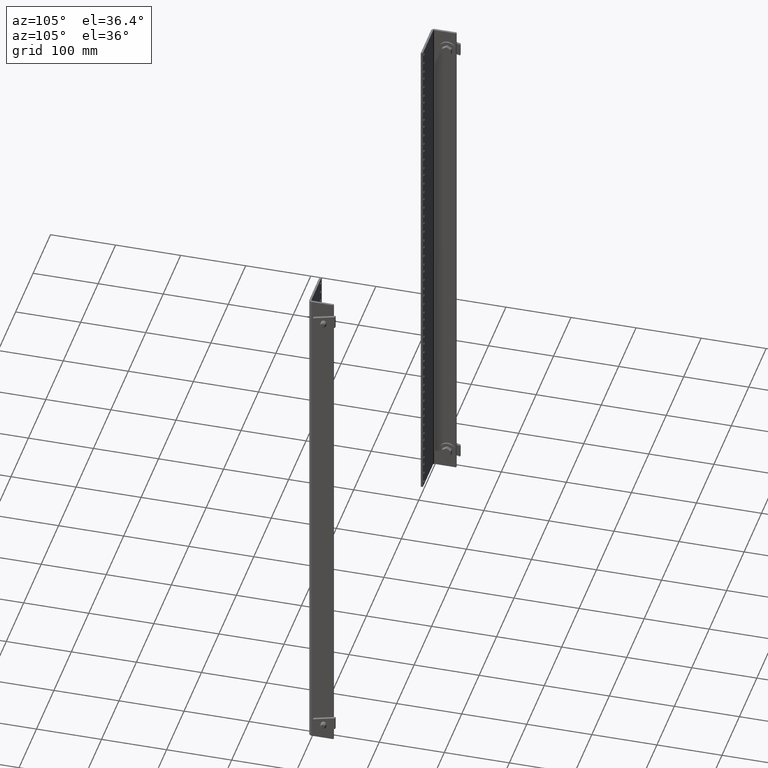
[diagram: clean part render]
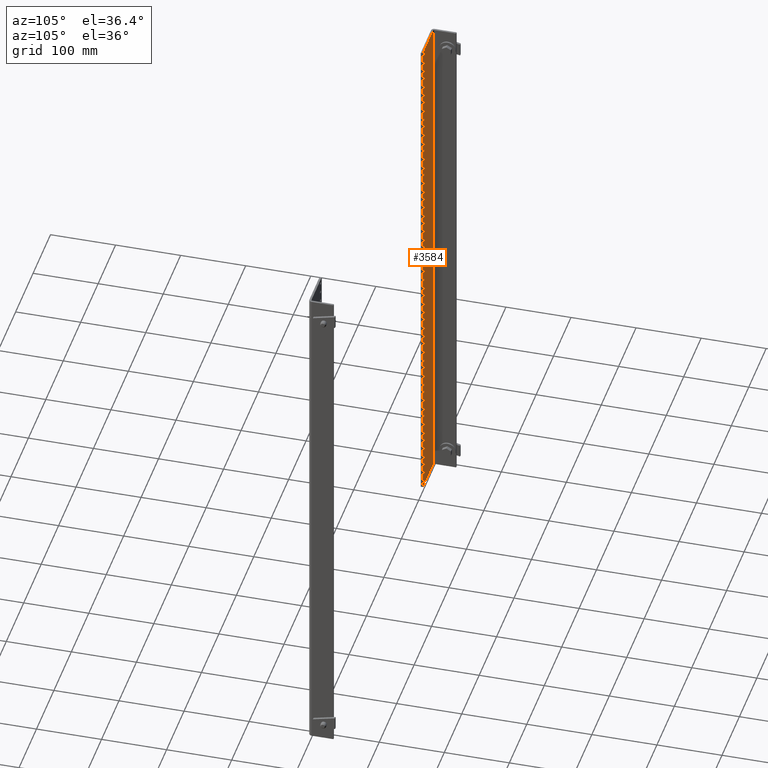
[diagram: same view with one face highlighted and labeled with its STEP entity id]
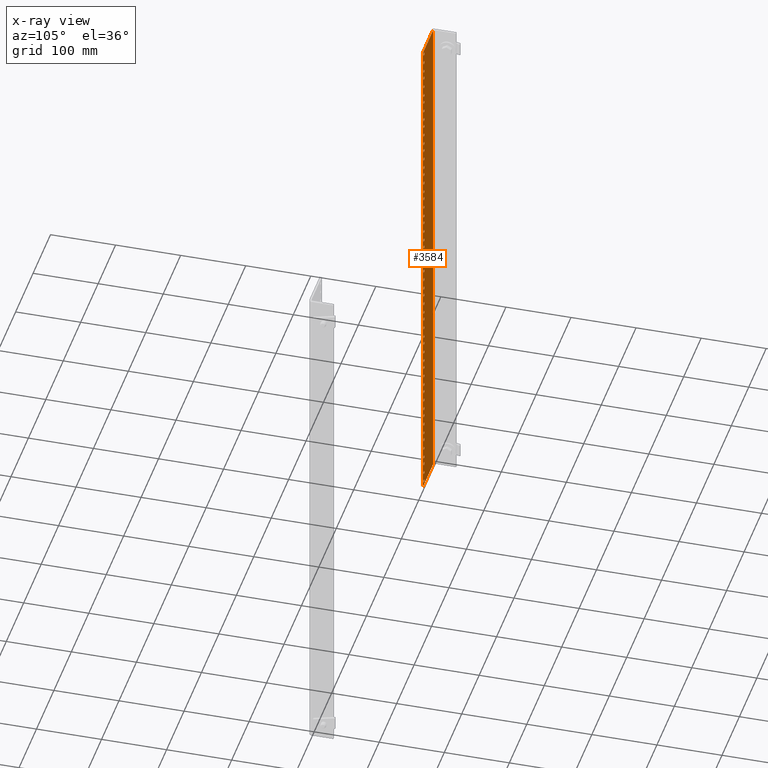
[diagram: x-ray of the same camera — body ghosted, the highlighted face saturated]
A machine part, auxiliary view. The second image highlights one B-rep face of the part: STEP entity #3584.
The next image is the same camera in x-ray: the body ghosted, the highlighted face saturated — about 0% of this face is hidden behind the body in this view.
In plain terms, the highlighted planar face has unit normal (-0, -1, 0).
Its self-contained STEP definition (entity closure, byte-faithful):
#8 = DIRECTION ( 'NONE',  ( -1.000000000000000000, 0.0000000000000000000, 0.0000000000000000000 ) ) ;
#29 = AXIS2_PLACEMENT_3D ( 'NONE', #9584, #8676, #6581 ) ;
#30 = CARTESIAN_POINT ( 'NONE',  ( -24.33999999999999986, 0.1250000000000026368, -4.999999999999995559 ) ) ;
#39 = VERTEX_POINT ( 'NONE', #3080 ) ;
#44 = DIRECTION ( 'NONE',  ( -8.326672684688670355E-17, -1.000000000000000000, 5.378950188740039876E-17 ) ) ;
#60 = VERTEX_POINT ( 'NONE', #2283 ) ;
#61 = VECTOR ( 'NONE', #6473, 39.37007874015748143 ) ;
#71 = EDGE_LOOP ( 'NONE', ( #6955, #1769 ) ) ;
#105 = FACE_BOUND ( 'NONE', #4201, .T. ) ;
#117 = ORIENTED_EDGE ( 'NONE', *, *, #7595, .T. ) ;
#132 = EDGE_LOOP ( 'NONE', ( #5745, #11294 ) ) ;
#142 = ORIENTED_EDGE ( 'NONE', *, *, #9366, .T. ) ;
#145 = CARTESIAN_POINT ( 'NONE',  ( -24.42849999999999966, 0.1250000000000026923, -4.374999999999995559 ) ) ;
#156 = CARTESIAN_POINT ( 'NONE',  ( -24.33999999999999986, 0.1250000000000029698, 0.8750000000000044409 ) ) ;
#167 = DIRECTION ( 'NONE',  ( -1.000000000000000000, 0.0000000000000000000, 0.0000000000000000000 ) ) ;
#169 = CARTESIAN_POINT ( 'NONE',  ( -24.33999999999999986, 0.1250000000000026368, -4.999999999999995559 ) ) ;
#178 = CARTESIAN_POINT ( 'NONE',  ( -24.25150000000000361, 0.1250000000000030809, 3.250000000000004441 ) ) ;
#186 = DIRECTION ( 'NONE',  ( -8.326672684688670355E-17, -1.000000000000000000, 5.378950188740039876E-17 ) ) ;
#190 = EDGE_CURVE ( 'NONE', #5792, #2479, #8547, .T. ) ;
#195 = CARTESIAN_POINT ( 'NONE',  ( -24.33999999999999986, 0.1250000000000022204, -13.12499999999999645 ) ) ;
#209 = CARTESIAN_POINT ( 'NONE',  ( -24.33999999999999986, 0.1250000000000020817, -15.49999999999999645 ) ) ;
#214 = ORIENTED_EDGE ( 'NONE', *, *, #3765, .T. ) ;
#220 = EDGE_CURVE ( 'NONE', #4344, #1645, #998, .T. ) ;
#221 = AXIS2_PLACEMENT_3D ( 'NONE', #5200, #10929, #12237 ) ;
#227 = VERTEX_POINT ( 'NONE', #7673 ) ;
#229 = EDGE_CURVE ( 'NONE', #2376, #1826, #12979, .T. ) ;
#259 = CIRCLE ( 'NONE', #11802, 0.08849999999999880185 ) ;
#265 = ORIENTED_EDGE ( 'NONE', *, *, #1870, .T. ) ;
#273 = CARTESIAN_POINT ( 'NONE',  ( -24.33999999999999986, 0.1250000000000030254, 2.000000000000004441 ) ) ;
#277 = CARTESIAN_POINT ( 'NONE',  ( -24.42849999999999966, 0.1250000000000030254, 2.000000000000004441 ) ) ;
#283 = EDGE_LOOP ( 'NONE', ( #3303, #7540 ) ) ;
#293 = EDGE_CURVE ( 'NONE', #11088, #5054, #4578, .T. ) ;
#302 = EDGE_CURVE ( 'NONE', #11111, #4785, #11080, .T. ) ;
#325 = ORIENTED_EDGE ( 'NONE', *, *, #3774, .T. ) ;
#332 = CARTESIAN_POINT ( 'NONE',  ( -24.33999999999999986, 0.1250000000000027200, -3.749999999999996003 ) ) ;
#334 = ORIENTED_EDGE ( 'NONE', *, *, #684, .T. ) ;
#335 = VERTEX_POINT ( 'NONE', #8553 ) ;
#346 = ORIENTED_EDGE ( 'NONE', *, *, #7353, .T. ) ;
#382 = VERTEX_POINT ( 'NONE', #10650 ) ;
#385 = DIRECTION ( 'NONE',  ( -8.326672684688670355E-17, -1.000000000000000000, 5.378950188740039876E-17 ) ) ;
#408 = AXIS2_PLACEMENT_3D ( 'NONE', #5511, #5629, #6425 ) ;
#426 = CIRCLE ( 'NONE', #9041, 0.08849999999999880185 ) ;
#434 = ORIENTED_EDGE ( 'NONE', *, *, #7224, .T. ) ;
#436 = EDGE_CURVE ( 'NONE', #4785, #11111, #7930, .T. ) ;
#437 = DIRECTION ( 'NONE',  ( -1.000000000000000000, 0.0000000000000000000, 0.0000000000000000000 ) ) ;
#440 = CIRCLE ( 'NONE', #4863, 0.08849999999999880185 ) ;
#443 = AXIS2_PLACEMENT_3D ( 'NONE', #3805, #7813, #11820 ) ;
#453 = AXIS2_PLACEMENT_3D ( 'NONE', #2685, #7692, #3743 ) ;
#457 = DIRECTION ( 'NONE',  ( -8.326672684688670355E-17, -1.000000000000000000, 5.378950188740039876E-17 ) ) ;
#463 = CARTESIAN_POINT ( 'NONE',  ( -24.33999999999999986, 0.1250000000000020817, -15.49999999999999645 ) ) ;
#499 = AXIS2_PLACEMENT_3D ( 'NONE', #3634, #8624, #10919 ) ;
#504 = CARTESIAN_POINT ( 'NONE',  ( -24.33999999999999986, 0.1250000000000037470, 15.50000000000000533 ) ) ;
#506 = AXIS2_PLACEMENT_3D ( 'NONE', #2013, #962, #12938 ) ;
#523 = FACE_BOUND ( 'NONE', #3028, .T. ) ;
#535 = EDGE_CURVE ( 'NONE', #12555, #6052, #1003, .T. ) ;
#538 = DIRECTION ( 'NONE',  ( -8.326672684688670355E-17, -1.000000000000000000, 5.378950188740039876E-17 ) ) ;
#553 = ORIENTED_EDGE ( 'NONE', *, *, #12870, .T. ) ;
#563 = DIRECTION ( 'NONE',  ( -8.326672684688670355E-17, -1.000000000000000000, 5.378950188740039876E-17 ) ) ;
#592 = VERTEX_POINT ( 'NONE', #6349 ) ;
#600 = CARTESIAN_POINT ( 'NONE',  ( -24.42849999999999966, 0.1250000000000032474, 6.125000000000004441 ) ) ;
#622 = CARTESIAN_POINT ( 'NONE',  ( -24.25150000000000361, 0.1250000000000023592, -10.24999999999999645 ) ) ;
#638 = CIRCLE ( 'NONE', #29, 0.08849999999999880185 ) ;
#647 = ORIENTED_EDGE ( 'NONE', *, *, #9135, .T. ) ;
#662 = CIRCLE ( 'NONE', #7810, 0.08849999999999880185 ) ;
#664 = AXIS2_PLACEMENT_3D ( 'NONE', #4472, #4335, #10319 ) ;
#678 = DIRECTION ( 'NONE',  ( -8.326672684688670355E-17, -1.000000000000000000, 5.378950188740039876E-17 ) ) ;
#684 = EDGE_CURVE ( 'NONE', #4559, #3872, #5020, .T. ) ;
#696 = CIRCLE ( 'NONE', #11198, 0.08849999999999880185 ) ;
#699 = ORIENTED_EDGE ( 'NONE', *, *, #3518, .T. ) ;
#711 = CARTESIAN_POINT ( 'NONE',  ( -24.33999999999999986, 0.1250000000000023592, -10.24999999999999645 ) ) ;
#713 = VERTEX_POINT ( 'NONE', #2784 ) ;
#717 = ORIENTED_EDGE ( 'NONE', *, *, #302, .T. ) ;
#725 = VERTEX_POINT ( 'NONE', #5558 ) ;
#757 = DIRECTION ( 'NONE',  ( -1.000000000000000000, 0.0000000000000000000, 0.0000000000000000000 ) ) ;
#783 = AXIS2_PLACEMENT_3D ( 'NONE', #3754, #2636, #2775 ) ;
#788 = EDGE_LOOP ( 'NONE', ( #9380, #9986, #2583, #10880 ) ) ;
#815 = CARTESIAN_POINT ( 'NONE',  ( -24.25150000000000361, 0.1250000000000037470, 15.50000000000000533 ) ) ;
#816 = CIRCLE ( 'NONE', #8587, 0.08849999999999880185 ) ;
#823 = DIRECTION ( 'NONE',  ( -1.000000000000000000, 0.0000000000000000000, 0.0000000000000000000 ) ) ;
#833 = AXIS2_PLACEMENT_3D ( 'NONE', #9963, #955, #6080 ) ;
#837 = AXIS2_PLACEMENT_3D ( 'NONE', #3336, #186, #4198 ) ;
#844 = CARTESIAN_POINT ( 'NONE',  ( -24.25150000000000361, 0.1250000000000028311, -1.499999999999995781 ) ) ;
#857 = CARTESIAN_POINT ( 'NONE',  ( -24.25150000000000361, 0.1250000000000022204, -13.12499999999999645 ) ) ;
#859 = CIRCLE ( 'NONE', #3597, 0.08849999999999880185 ) ;
#871 = AXIS2_PLACEMENT_3D ( 'NONE', #5918, #10178, #7416 ) ;
#872 = EDGE_LOOP ( 'NONE', ( #7964, #3976 ) ) ;
#888 = FACE_BOUND ( 'NONE', #6530, .T. ) ;
#903 = ORIENTED_EDGE ( 'NONE', *, *, #229, .T. ) ;
#924 = AXIS2_PLACEMENT_3D ( 'NONE', #209, #10199, #7248 ) ;
#947 = ORIENTED_EDGE ( 'NONE', *, *, #10952, .T. ) ;
#955 = DIRECTION ( 'NONE',  ( -8.326672684688670355E-17, -1.000000000000000000, 5.378950188740039876E-17 ) ) ;
#956 = CARTESIAN_POINT ( 'NONE',  ( -24.42849999999999966, 0.1250000000000031641, 4.375000000000004441 ) ) ;
#958 = DIRECTION ( 'NONE',  ( -1.000000000000000000, 0.0000000000000000000, 0.0000000000000000000 ) ) ;
#962 = DIRECTION ( 'NONE',  ( -8.326672684688670355E-17, -1.000000000000000000, 5.378950188740039876E-17 ) ) ;
#972 = DIRECTION ( 'NONE',  ( -1.000000000000000000, 0.0000000000000000000, 0.0000000000000000000 ) ) ;
#979 = LINE ( 'NONE', #2889, #11950 ) ;
#992 = VERTEX_POINT ( 'NONE', #10334 ) ;
#998 = CIRCLE ( 'NONE', #8775, 0.08849999999999880185 ) ;
#999 = CARTESIAN_POINT ( 'NONE',  ( -24.42849999999999966, 0.1250000000000021927, -13.74999999999999645 ) ) ;
#1003 = CIRCLE ( 'NONE', #5217, 0.08849999999999880185 ) ;
#1005 = FACE_OUTER_BOUND ( 'NONE', #788, .T. ) ;
#1029 = CARTESIAN_POINT ( 'NONE',  ( -24.25150000000000361, 0.1250000000000029421, 0.2500000000000051625 ) ) ;
#1030 = AXIS2_PLACEMENT_3D ( 'NONE', #9757, #9894, #3001 ) ;
#1043 = CIRCLE ( 'NONE', #9854, 0.08849999999999880185 ) ;
#1047 = DIRECTION ( 'NONE',  ( -1.000000000000000000, 0.0000000000000000000, 0.0000000000000000000 ) ) ;
#1048 = DIRECTION ( 'NONE',  ( -8.326672684688670355E-17, -1.000000000000000000, 5.378950188740039876E-17 ) ) ;
#1064 = VERTEX_POINT ( 'NONE', #5470 ) ;
#1081 = FACE_BOUND ( 'NONE', #2126, .T. ) ;
#1082 = CARTESIAN_POINT ( 'NONE',  ( -24.42849999999999966, 0.1250000000000037192, 14.87500000000000533 ) ) ;
#1095 = EDGE_CURVE ( 'NONE', #382, #9923, #10257, .T. ) ;
#1211 = CARTESIAN_POINT ( 'NONE',  ( -24.25150000000000361, 0.1250000000000024147, -9.624999999999996447 ) ) ;
#1223 = CIRCLE ( 'NONE', #4798, 0.08849999999999880185 ) ;
#1237 = CARTESIAN_POINT ( 'NONE',  ( -24.25150000000000361, 0.1250000000000036637, 13.75000000000000533 ) ) ;
#1241 = AXIS2_PLACEMENT_3D ( 'NONE', #11119, #4162, #3052 ) ;
#1257 = EDGE_CURVE ( 'NONE', #4035, #60, #12364, .T. ) ;
#1259 = AXIS2_PLACEMENT_3D ( 'NONE', #1849, #4903, #7903 ) ;
#1312 = DIRECTION ( 'NONE',  ( -8.326672684688670355E-17, -1.000000000000000000, 5.378950188740039876E-17 ) ) ;
#1336 = EDGE_CURVE ( 'NONE', #2489, #2110, #979, .T. ) ;
#1338 = CARTESIAN_POINT ( 'NONE',  ( -24.33999999999999986, 0.1250000000000037470, 15.50000000000000533 ) ) ;
#1350 = DIRECTION ( 'NONE',  ( -8.326672684688670355E-17, -1.000000000000000000, 5.378950188740039876E-17 ) ) ;
#1357 = ORIENTED_EDGE ( 'NONE', *, *, #4402, .T. ) ;
#1359 = AXIS2_PLACEMENT_3D ( 'NONE', #9340, #10959, #6956 ) ;
#1379 = CARTESIAN_POINT ( 'NONE',  ( -26.59000000000000341, 0.1250000000000024147, 15.75000000000000533 ) ) ;
#1381 = DIRECTION ( 'NONE',  ( -1.000000000000000000, 0.0000000000000000000, 0.0000000000000000000 ) ) ;
#1382 = VERTEX_POINT ( 'NONE', #1237 ) ;
#1417 = CARTESIAN_POINT ( 'NONE',  ( -24.42849999999999966, 0.1250000000000036637, 13.75000000000000533 ) ) ;
#1420 = EDGE_CURVE ( 'NONE', #713, #6952, #2922, .T. ) ;
#1426 = ORIENTED_EDGE ( 'NONE', *, *, #9244, .T. ) ;
#1436 = AXIS2_PLACEMENT_3D ( 'NONE', #6539, #10473, #1467 ) ;
#1453 = CARTESIAN_POINT ( 'NONE',  ( -24.42849999999999966, 0.1250000000000023315, -10.74999999999999645 ) ) ;
#1460 = CIRCLE ( 'NONE', #3144, 0.08849999999999880185 ) ;
#1467 = DIRECTION ( 'NONE',  ( -1.000000000000000000, 0.0000000000000000000, 0.0000000000000000000 ) ) ;
#1469 = CARTESIAN_POINT ( 'NONE',  ( -24.25150000000000361, 0.1250000000000021094, -14.87499999999999645 ) ) ;
#1504 = CARTESIAN_POINT ( 'NONE',  ( -24.33999999999999986, 0.1250000000000036082, 13.12500000000000533 ) ) ;
#1506 = CARTESIAN_POINT ( 'NONE',  ( -24.42849999999999966, 0.1250000000000034972, 10.75000000000000533 ) ) ;
#1514 = CARTESIAN_POINT ( 'NONE',  ( -24.42849999999999966, 0.1250000000000034417, 9.625000000000005329 ) ) ;
#1522 = ORIENTED_EDGE ( 'NONE', *, *, #7474, .T. ) ;
#1537 = CARTESIAN_POINT ( 'NONE',  ( -24.33999999999999986, 0.1250000000000034694, 10.25000000000000533 ) ) ;
#1563 = DIRECTION ( 'NONE',  ( -8.326672684688670355E-17, -1.000000000000000000, 5.378950188740039876E-17 ) ) ;
#1565 = DIRECTION ( 'NONE',  ( -1.000000000000000000, 0.0000000000000000000, 0.0000000000000000000 ) ) ;
#1583 = EDGE_LOOP ( 'NONE', ( #7745, #1743 ) ) ;
#1621 = DIRECTION ( 'NONE',  ( -1.000000000000000000, 0.0000000000000000000, 0.0000000000000000000 ) ) ;
#1643 = EDGE_CURVE ( 'NONE', #2479, #5792, #5455, .T. ) ;
#1644 = ORIENTED_EDGE ( 'NONE', *, *, #3017, .T. ) ;
#1645 = VERTEX_POINT ( 'NONE', #3988 ) ;
#1683 = CIRCLE ( 'NONE', #3173, 0.08849999999999880185 ) ;
#1688 = AXIS2_PLACEMENT_3D ( 'NONE', #6830, #4732, #8730 ) ;
#1693 = CIRCLE ( 'NONE', #10716, 0.08849999999999880185 ) ;
#1714 = EDGE_CURVE ( 'NONE', #4080, #725, #8817, .T. ) ;
#1729 = CARTESIAN_POINT ( 'NONE',  ( -24.42849999999999966, 0.1250000000000033584, 7.875000000000005329 ) ) ;
#1730 = CARTESIAN_POINT ( 'NONE',  ( -24.33999999999999986, 0.1250000000000030809, 3.250000000000004441 ) ) ;
#1743 = ORIENTED_EDGE ( 'NONE', *, *, #7258, .T. ) ;
#1746 = CARTESIAN_POINT ( 'NONE',  ( -24.25150000000000361, 0.1250000000000036082, 13.12500000000000533 ) ) ;
#1757 = ORIENTED_EDGE ( 'NONE', *, *, #4641, .T. ) ;
#1769 = ORIENTED_EDGE ( 'NONE', *, *, #6107, .T. ) ;
#1800 = CARTESIAN_POINT ( 'NONE',  ( -24.25150000000000361, 0.1250000000000022482, -12.49999999999999645 ) ) ;
#1817 = DIRECTION ( 'NONE',  ( -1.000000000000000000, 0.0000000000000000000, 0.0000000000000000000 ) ) ;
#1819 = EDGE_CURVE ( 'NONE', #4188, #8572, #11120, .T. ) ;
#1824 = CARTESIAN_POINT ( 'NONE',  ( -24.33999999999999986, 0.1250000000000031364, 3.750000000000004441 ) ) ;
#1826 = VERTEX_POINT ( 'NONE', #3314 ) ;
#1828 = EDGE_LOOP ( 'NONE', ( #10180, #8098 ) ) ;
#1848 = VERTEX_POINT ( 'NONE', #8315 ) ;
#1849 = CARTESIAN_POINT ( 'NONE',  ( -24.33999999999999986, 0.1250000000000028311, -1.499999999999995781 ) ) ;
#1858 = CIRCLE ( 'NONE', #7952, 0.08849999999999880185 ) ;
#1860 = FACE_BOUND ( 'NONE', #7874, .T. ) ;
#1861 = DIRECTION ( 'NONE',  ( -1.000000000000000000, 0.0000000000000000000, 0.0000000000000000000 ) ) ;
#1866 = DIRECTION ( 'NONE',  ( -1.000000000000000000, 0.0000000000000000000, 0.0000000000000000000 ) ) ;
#1870 = EDGE_CURVE ( 'NONE', #8555, #10043, #6292, .T. ) ;
#1876 = CIRCLE ( 'NONE', #12388, 0.08849999999999880185 ) ;
#1894 = ORIENTED_EDGE ( 'NONE', *, *, #5106, .T. ) ;
#1896 = VERTEX_POINT ( 'NONE', #2204 ) ;
#1905 = DIRECTION ( 'NONE',  ( -8.326672684688670355E-17, -1.000000000000000000, 5.378950188740039876E-17 ) ) ;
#1920 = EDGE_LOOP ( 'NONE', ( #11777, #5327 ) ) ;
#1935 = AXIS2_PLACEMENT_3D ( 'NONE', #5528, #11481, #9716 ) ;
#1946 = DIRECTION ( 'NONE',  ( -8.326672684688670355E-17, -1.000000000000000000, 5.378950188740039876E-17 ) ) ;
#1982 = AXIS2_PLACEMENT_3D ( 'NONE', #3666, #12437, #1381 ) ;
#1987 = EDGE_CURVE ( 'NONE', #8413, #5022, #1043, .T. ) ;
#1991 = CARTESIAN_POINT ( 'NONE',  ( -24.25150000000000361, 0.1250000000000027478, -3.249999999999995559 ) ) ;
#1997 = FACE_BOUND ( 'NONE', #132, .T. ) ;
#2013 = CARTESIAN_POINT ( 'NONE',  ( -24.33999999999999986, 0.1250000000000023315, -10.74999999999999645 ) ) ;
#2108 = AXIS2_PLACEMENT_3D ( 'NONE', #7603, #10423, #7413 ) ;
#2110 = VERTEX_POINT ( 'NONE', #11236 ) ;
#2117 = AXIS2_PLACEMENT_3D ( 'NONE', #711, #9581, #11625 ) ;
#2120 = AXIS2_PLACEMENT_3D ( 'NONE', #7686, #11681, #2680 ) ;
#2125 = CIRCLE ( 'NONE', #5695, 0.08849999999999880185 ) ;
#2126 = EDGE_LOOP ( 'NONE', ( #717, #9268 ) ) ;
#2132 = CARTESIAN_POINT ( 'NONE',  ( -24.42849999999999966, 0.1250000000000023037, -11.37499999999999822 ) ) ;
#2139 = CARTESIAN_POINT ( 'NONE',  ( -24.33999999999999986, 0.1250000000000035250, 11.37500000000000711 ) ) ;
#2152 = ORIENTED_EDGE ( 'NONE', *, *, #2234, .T. ) ;
#2178 = EDGE_CURVE ( 'NONE', #8382, #6652, #9648, .T. ) ;
#2204 = CARTESIAN_POINT ( 'NONE',  ( -24.25150000000000361, 0.1250000000000034417, 9.625000000000005329 ) ) ;
#2234 = EDGE_CURVE ( 'NONE', #8840, #10975, #11546, .T. ) ;
#2240 = EDGE_LOOP ( 'NONE', ( #1894, #3653 ) ) ;
#2259 = DIRECTION ( 'NONE',  ( -8.326672684688670355E-17, -1.000000000000000000, 5.378950188740039876E-17 ) ) ;
#2263 = EDGE_CURVE ( 'NONE', #5054, #11088, #426, .T. ) ;
#2264 = DIRECTION ( 'NONE',  ( -1.000000000000000000, 0.0000000000000000000, 0.0000000000000000000 ) ) ;
#2283 = CARTESIAN_POINT ( 'NONE',  ( -24.25150000000000361, 0.1250000000000033029, 7.250000000000005329 ) ) ;
#2333 = AXIS2_PLACEMENT_3D ( 'NONE', #2743, #11621, #1817 ) ;
#2337 = CIRCLE ( 'NONE', #3394, 0.08849999999999880185 ) ;
#2355 = EDGE_CURVE ( 'NONE', #7697, #6597, #7366, .T. ) ;
#2376 = VERTEX_POINT ( 'NONE', #11293 ) ;
#2387 = DIRECTION ( 'NONE',  ( -1.000000000000000000, 0.0000000000000000000, 0.0000000000000000000 ) ) ;
#2398 = EDGE_CURVE ( 'NONE', #7696, #3678, #12828, .T. ) ;
#2423 = CARTESIAN_POINT ( 'NONE',  ( -24.33999999999999986, 0.1250000000000021927, -13.74999999999999645 ) ) ;
#2428 = FACE_BOUND ( 'NONE', #5899, .T. ) ;
#2429 = VERTEX_POINT ( 'NONE', #277 ) ;
#2472 = VERTEX_POINT ( 'NONE', #7740 ) ;
#2479 = VERTEX_POINT ( 'NONE', #9527 ) ;
#2489 = VERTEX_POINT ( 'NONE', #4676 ) ;
#2500 = DIRECTION ( 'NONE',  ( -1.000000000000000000, 8.326672684688670355E-17, -4.478875760888269837E-33 ) ) ;
#2510 = EDGE_CURVE ( 'NONE', #6855, #7249, #12611, .T. ) ;
#2527 = CIRCLE ( 'NONE', #4422, 0.08849999999999880185 ) ;
#2543 = VERTEX_POINT ( 'NONE', #1514 ) ;
#2564 = DIRECTION ( 'NONE',  ( -8.326672684688670355E-17, -1.000000000000000000, 5.378950188740039876E-17 ) ) ;
#2583 = ORIENTED_EDGE ( 'NONE', *, *, #1336, .F. ) ;
#2610 = ORIENTED_EDGE ( 'NONE', *, *, #1420, .T. ) ;
#2629 = CARTESIAN_POINT ( 'NONE',  ( -24.42849999999999966, 0.1250000000000033862, 8.500000000000005329 ) ) ;
#2636 = DIRECTION ( 'NONE',  ( -8.326672684688670355E-17, -1.000000000000000000, 5.378950188740039876E-17 ) ) ;
#2647 = CARTESIAN_POINT ( 'NONE',  ( -24.25150000000000361, 0.1250000000000024702, -8.499999999999996447 ) ) ;
#2651 = CARTESIAN_POINT ( 'NONE',  ( -24.25150000000000361, 0.1250000000000035250, 11.37500000000000711 ) ) ;
#2661 = EDGE_LOOP ( 'NONE', ( #7801, #8350 ) ) ;
#2680 = DIRECTION ( 'NONE',  ( -1.000000000000000000, 0.0000000000000000000, 0.0000000000000000000 ) ) ;
#2685 = CARTESIAN_POINT ( 'NONE',  ( -24.33999999999999986, 0.1250000000000033862, 8.500000000000005329 ) ) ;
#2695 = ORIENTED_EDGE ( 'NONE', *, *, #1095, .T. ) ;
#2715 = AXIS2_PLACEMENT_3D ( 'NONE', #12984, #10215, #9166 ) ;
#2732 = VECTOR ( 'NONE', #9521, 39.37007874015748143 ) ;
#2738 = DIRECTION ( 'NONE',  ( -1.000000000000000000, 0.0000000000000000000, 0.0000000000000000000 ) ) ;
#2742 = AXIS2_PLACEMENT_3D ( 'NONE', #9650, #10635, #6693 ) ;
#2743 = CARTESIAN_POINT ( 'NONE',  ( -24.33999999999999986, 0.1250000000000031641, 4.375000000000004441 ) ) ;
#2755 = AXIS2_PLACEMENT_3D ( 'NONE', #7829, #1905, #2828 ) ;
#2757 = CIRCLE ( 'NONE', #10112, 0.08849999999999880185 ) ;
#2762 = CARTESIAN_POINT ( 'NONE',  ( -24.33999999999999986, 0.1250000000000033862, 9.000000000000005329 ) ) ;
#2772 = EDGE_CURVE ( 'NONE', #60, #4035, #6960, .T. ) ;
#2775 = DIRECTION ( 'NONE',  ( -1.000000000000000000, 0.0000000000000000000, 0.0000000000000000000 ) ) ;
#2784 = CARTESIAN_POINT ( 'NONE',  ( -24.42849999999999966, 0.1250000000000022204, -13.12499999999999645 ) ) ;
#2792 = DIRECTION ( 'NONE',  ( -1.000000000000000000, 0.0000000000000000000, 0.0000000000000000000 ) ) ;
#2793 = FACE_BOUND ( 'NONE', #10596, .T. ) ;
#2828 = DIRECTION ( 'NONE',  ( -1.000000000000000000, 0.0000000000000000000, 0.0000000000000000000 ) ) ;
#2848 = EDGE_CURVE ( 'NONE', #1896, #2543, #7594, .T. ) ;
#2876 = CARTESIAN_POINT ( 'NONE',  ( -24.33999999999999986, 0.1250000000000034972, 10.75000000000000533 ) ) ;
#2889 = CARTESIAN_POINT ( 'NONE',  ( -26.59000000000000341, 0.1250000000000007216, -15.74999999999999645 ) ) ;
#2892 = AXIS2_PLACEMENT_3D ( 'NONE', #9063, #7339, #5128 ) ;
#2916 = FACE_BOUND ( 'NONE', #1828, .T. ) ;
#2922 = CIRCLE ( 'NONE', #4603, 0.08849999999999880185 ) ;
#2938 = CARTESIAN_POINT ( 'NONE',  ( -24.25150000000000361, 0.1250000000000030531, 2.625000000000004441 ) ) ;
#2939 = VERTEX_POINT ( 'NONE', #3469 ) ;
#2948 = AXIS2_PLACEMENT_3D ( 'NONE', #8776, #12788, #4313 ) ;
#2958 = CIRCLE ( 'NONE', #6536, 0.08849999999999880185 ) ;
#2969 = AXIS2_PLACEMENT_3D ( 'NONE', #7749, #2259, #10351 ) ;
#2979 = ORIENTED_EDGE ( 'NONE', *, *, #11063, .T. ) ;
#2990 = CIRCLE ( 'NONE', #6764, 0.08849999999999880185 ) ;
#2996 = FACE_BOUND ( 'NONE', #4933, .T. ) ;
#3001 = DIRECTION ( 'NONE',  ( -1.000000000000000000, 0.0000000000000000000, 0.0000000000000000000 ) ) ;
#3017 = EDGE_CURVE ( 'NONE', #7372, #9034, #10108, .T. ) ;
#3028 = EDGE_LOOP ( 'NONE', ( #11670, #699 ) ) ;
#3052 = DIRECTION ( 'NONE',  ( -1.000000000000000000, 0.0000000000000000000, 0.0000000000000000000 ) ) ;
#3070 = ORIENTED_EDGE ( 'NONE', *, *, #6691, .T. ) ;
#3080 = CARTESIAN_POINT ( 'NONE',  ( -24.25150000000000361, 0.1250000000000030254, 2.000000000000004441 ) ) ;
#3081 = EDGE_LOOP ( 'NONE', ( #117, #3268 ) ) ;
#3082 = EDGE_CURVE ( 'NONE', #10166, #11298, #9450, .T. ) ;
#3122 = DIRECTION ( 'NONE',  ( -8.326672684688670355E-17, -1.000000000000000000, 5.378950188740039876E-17 ) ) ;
#3134 = EDGE_LOOP ( 'NONE', ( #5133, #6418 ) ) ;
#3144 = AXIS2_PLACEMENT_3D ( 'NONE', #4964, #7771, #12709 ) ;
#3147 = CARTESIAN_POINT ( 'NONE',  ( -24.33999999999999986, 0.1250000000000033584, 7.875000000000005329 ) ) ;
#3156 = CIRCLE ( 'NONE', #9867, 0.08849999999999880185 ) ;
#3159 = CIRCLE ( 'NONE', #837, 0.08849999999999880185 ) ;
#3173 = AXIS2_PLACEMENT_3D ( 'NONE', #5988, #5004, #1047 ) ;
#3181 = CIRCLE ( 'NONE', #4432, 0.08849999999999880185 ) ;
#3185 = CIRCLE ( 'NONE', #12835, 0.08849999999999880185 ) ;
#3188 = AXIS2_PLACEMENT_3D ( 'NONE', #5383, #8330, #11276 ) ;
#3229 = CARTESIAN_POINT ( 'NONE',  ( -24.33999999999999986, 0.1250000000000022204, -13.12499999999999645 ) ) ;
#3268 = ORIENTED_EDGE ( 'NONE', *, *, #8047, .T. ) ;
#3279 = ORIENTED_EDGE ( 'NONE', *, *, #5531, .T. ) ;
#3299 = DIRECTION ( 'NONE',  ( -1.000000000000000000, 0.0000000000000000000, 0.0000000000000000000 ) ) ;
#3303 = ORIENTED_EDGE ( 'NONE', *, *, #9245, .T. ) ;
#3312 = CARTESIAN_POINT ( 'NONE',  ( -24.42849999999999966, 0.1250000000000022482, -12.49999999999999645 ) ) ;
#3314 = CARTESIAN_POINT ( 'NONE',  ( -24.25150000000000361, 0.1250000000000025258, -7.249999999999996447 ) ) ;
#3315 = DIRECTION ( 'NONE',  ( -8.326672684688670355E-17, -1.000000000000000000, 5.378950188740039876E-17 ) ) ;
#3316 = DIRECTION ( 'NONE',  ( -8.326672684688670355E-17, -1.000000000000000000, 5.378950188740039876E-17 ) ) ;
#3326 = CARTESIAN_POINT ( 'NONE',  ( -24.25150000000000361, 0.1250000000000031364, 3.750000000000004441 ) ) ;
#3336 = CARTESIAN_POINT ( 'NONE',  ( -24.33999999999999986, 0.1250000000000032474, 6.125000000000004441 ) ) ;
#3342 = DIRECTION ( 'NONE',  ( -1.000000000000000000, 0.0000000000000000000, 0.0000000000000000000 ) ) ;
#3353 = VERTEX_POINT ( 'NONE', #4638 ) ;
#3372 = ORIENTED_EDGE ( 'NONE', *, *, #2355, .T. ) ;
#3394 = AXIS2_PLACEMENT_3D ( 'NONE', #2762, #1048, #7947 ) ;
#3396 = AXIS2_PLACEMENT_3D ( 'NONE', #1338, #12450, #8362 ) ;
#3400 = CARTESIAN_POINT ( 'NONE',  ( -24.25150000000000361, 0.1250000000000029143, -0.2499999999999964473 ) ) ;
#3403 = AXIS2_PLACEMENT_3D ( 'NONE', #4850, #7924, #8859 ) ;
#3413 = AXIS2_PLACEMENT_3D ( 'NONE', #1379, #7065, #4540 ) ;
#3415 = ORIENTED_EDGE ( 'NONE', *, *, #190, .T. ) ;
#3418 = VERTEX_POINT ( 'NONE', #3705 ) ;
#3434 = DIRECTION ( 'NONE',  ( -1.000000000000000000, 0.0000000000000000000, 0.0000000000000000000 ) ) ;
#3439 = DIRECTION ( 'NONE',  ( -1.000000000000000000, 0.0000000000000000000, 0.0000000000000000000 ) ) ;
#3469 = CARTESIAN_POINT ( 'NONE',  ( -24.42849999999999966, 0.1250000000000036082, 13.12500000000000533 ) ) ;
#3470 = ORIENTED_EDGE ( 'NONE', *, *, #1643, .T. ) ;
#3472 = CARTESIAN_POINT ( 'NONE',  ( -24.42849999999999966, 0.1250000000000033029, 7.250000000000005329 ) ) ;
#3491 = EDGE_CURVE ( 'NONE', #5401, #2489, #11461, .T. ) ;
#3518 = EDGE_CURVE ( 'NONE', #6994, #12968, #1693, .T. ) ;
#3525 = VERTEX_POINT ( 'NONE', #5761 ) ;
#3530 = CARTESIAN_POINT ( 'NONE',  ( -24.33999999999999986, 0.1250000000000024425, -8.999999999999996447 ) ) ;
#3553 = CARTESIAN_POINT ( 'NONE',  ( -24.33999999999999986, 0.1250000000000032752, 6.750000000000004441 ) ) ;
#3584 = ADVANCED_FACE ( 'NONE', ( #1005, #888, #4768, #5034, #12065, #11799, #1997, #12859, #8766, #11998, #6736, #10859, #9037, #10743, #3979, #4912, #5815, #7007, #9755, #5957, #3858, #1860, #4975, #12779, #8972, #9815, #2793, #10803, #11921, #7854, #11864, #8917, #12925, #2996, #3918, #7914, #2916, #523, #4479, #4170, #6385, #9530, #8113, #4113, #2428, #10153, #6072, #7491, #1081, #9103, #11128, #5108, #105, #12121, #10387 ), #11487, .F. ) ;
#3597 = AXIS2_PLACEMENT_3D ( 'NONE', #3147, #4942, #10044 ) ;
#3607 = CIRCLE ( 'NONE', #453, 0.08849999999999880185 ) ;
#3610 = CARTESIAN_POINT ( 'NONE',  ( -24.33999999999999986, 0.1250000000000022760, -11.99999999999999645 ) ) ;
#3620 = ORIENTED_EDGE ( 'NONE', *, *, #5129, .T. ) ;
#3632 = DIRECTION ( 'NONE',  ( -8.326672684688670355E-17, -1.000000000000000000, 5.378950188740039876E-17 ) ) ;
#3634 = CARTESIAN_POINT ( 'NONE',  ( -24.33999999999999986, 0.1250000000000021372, -14.24999999999999645 ) ) ;
#3645 = CARTESIAN_POINT ( 'NONE',  ( -24.42849999999999966, 0.1250000000000024702, -8.499999999999996447 ) ) ;
#3653 = ORIENTED_EDGE ( 'NONE', *, *, #12608, .T. ) ;
#3666 = CARTESIAN_POINT ( 'NONE',  ( -24.33999999999999986, 0.1250000000000034417, 9.625000000000005329 ) ) ;
#3671 = CARTESIAN_POINT ( 'NONE',  ( -24.25150000000000361, 0.1250000000000028588, -0.8749999999999956701 ) ) ;
#3678 = VERTEX_POINT ( 'NONE', #8480 ) ;
#3680 = ORIENTED_EDGE ( 'NONE', *, *, #12125, .T. ) ;
#3705 = CARTESIAN_POINT ( 'NONE',  ( -24.25150000000000361, 0.1250000000000032752, 6.750000000000004441 ) ) ;
#3706 = CARTESIAN_POINT ( 'NONE',  ( -24.42849999999999966, 0.1250000000000027478, -3.249999999999995559 ) ) ;
#3714 = EDGE_CURVE ( 'NONE', #6016, #1382, #5069, .T. ) ;
#3718 = VERTEX_POINT ( 'NONE', #844 ) ;
#3724 = DIRECTION ( 'NONE',  ( -8.326672684688670355E-17, -1.000000000000000000, 5.378950188740039876E-17 ) ) ;
#3738 = DIRECTION ( 'NONE',  ( -8.326672684688670355E-17, -1.000000000000000000, 5.378950188740039876E-17 ) ) ;
#3740 = ORIENTED_EDGE ( 'NONE', *, *, #8842, .T. ) ;
#3743 = DIRECTION ( 'NONE',  ( -1.000000000000000000, 0.0000000000000000000, 0.0000000000000000000 ) ) ;
#3748 = CARTESIAN_POINT ( 'NONE',  ( -24.25150000000000361, 0.1250000000000026923, -4.374999999999995559 ) ) ;
#3754 = CARTESIAN_POINT ( 'NONE',  ( -24.33999999999999986, 0.1250000000000022482, -12.49999999999999645 ) ) ;
#3765 = EDGE_CURVE ( 'NONE', #4583, #12524, #440, .T. ) ;
#3774 = EDGE_CURVE ( 'NONE', #992, #6194, #638, .T. ) ;
#3790 = AXIS2_PLACEMENT_3D ( 'NONE', #169, #3316, #2264 ) ;
#3799 = DIRECTION ( 'NONE',  ( -1.000000000000000000, 0.0000000000000000000, 0.0000000000000000000 ) ) ;
#3805 = CARTESIAN_POINT ( 'NONE',  ( -24.33999999999999986, 0.1250000000000037192, 14.87500000000000533 ) ) ;
#3810 = CIRCLE ( 'NONE', #3396, 0.08849999999999880185 ) ;
#3815 = EDGE_CURVE ( 'NONE', #12052, #9985, #3181, .T. ) ;
#3822 = EDGE_CURVE ( 'NONE', #10975, #8840, #7787, .T. ) ;
#3832 = AXIS2_PLACEMENT_3D ( 'NONE', #6500, #11619, #9455 ) ;
#3858 = FACE_BOUND ( 'NONE', #7559, .T. ) ;
#3864 = DIRECTION ( 'NONE',  ( -1.000000000000000000, 0.0000000000000000000, 0.0000000000000000000 ) ) ;
#3872 = VERTEX_POINT ( 'NONE', #7884 ) ;
#3896 = EDGE_CURVE ( 'NONE', #9628, #12951, #8209, .T. ) ;
#3901 = DIRECTION ( 'NONE',  ( -1.000000000000000000, 0.0000000000000000000, 0.0000000000000000000 ) ) ;
#3906 = EDGE_CURVE ( 'NONE', #11086, #227, #12001, .T. ) ;
#3918 = FACE_BOUND ( 'NONE', #12050, .T. ) ;
#3925 = EDGE_CURVE ( 'NONE', #11298, #10166, #859, .T. ) ;
#3934 = VERTEX_POINT ( 'NONE', #10896 ) ;
#3957 = VERTEX_POINT ( 'NONE', #12089 ) ;
#3976 = ORIENTED_EDGE ( 'NONE', *, *, #11878, .T. ) ;
#3977 = CIRCLE ( 'NONE', #1436, 0.08849999999999880185 ) ;
#3979 = FACE_BOUND ( 'NONE', #10655, .T. ) ;
#3988 = CARTESIAN_POINT ( 'NONE',  ( -24.25150000000000361, 0.1250000000000024425, -8.999999999999996447 ) ) ;
#3990 = AXIS2_PLACEMENT_3D ( 'NONE', #156, #12974, #9099 ) ;
#3994 = AXIS2_PLACEMENT_3D ( 'NONE', #12323, #11328, #167 ) ;
#4002 = EDGE_LOOP ( 'NONE', ( #8172, #265 ) ) ;
#4017 = VERTEX_POINT ( 'NONE', #11475 ) ;
#4025 = CARTESIAN_POINT ( 'NONE',  ( -24.25150000000000361, 0.1250000000000026368, -4.999999999999995559 ) ) ;
#4026 = AXIS2_PLACEMENT_3D ( 'NONE', #1537, #12514, #8447 ) ;
#4032 = CIRCLE ( 'NONE', #5082, 0.08849999999999880185 ) ;
#4035 = VERTEX_POINT ( 'NONE', #3472 ) ;
#4056 = DIRECTION ( 'NONE',  ( -1.000000000000000000, 0.0000000000000000000, 0.0000000000000000000 ) ) ;
#4080 = VERTEX_POINT ( 'NONE', #11419 ) ;
#4090 = DIRECTION ( 'NONE',  ( -1.000000000000000000, 0.0000000000000000000, 0.0000000000000000000 ) ) ;
#4100 = AXIS2_PLACEMENT_3D ( 'NONE', #12582, #1350, #10475 ) ;
#4113 = FACE_BOUND ( 'NONE', #11048, .T. ) ;
#4129 = CARTESIAN_POINT ( 'NONE',  ( -24.42849999999999966, 0.1250000000000028033, -1.999999999999995559 ) ) ;
#4130 = EDGE_CURVE ( 'NONE', #10043, #8555, #3159, .T. ) ;
#4154 = ORIENTED_EDGE ( 'NONE', *, *, #5338, .T. ) ;
#4156 = ORIENTED_EDGE ( 'NONE', *, *, #5415, .T. ) ;
#4162 = DIRECTION ( 'NONE',  ( -8.326672684688670355E-17, -1.000000000000000000, 5.378950188740039876E-17 ) ) ;
#4170 = FACE_BOUND ( 'NONE', #8696, .T. ) ;
#4176 = DIRECTION ( 'NONE',  ( -8.326672684688670355E-17, -1.000000000000000000, 5.378950188740039876E-17 ) ) ;
#4188 = VERTEX_POINT ( 'NONE', #12163 ) ;
#4197 = EDGE_LOOP ( 'NONE', ( #9248, #6060 ) ) ;
#4198 = DIRECTION ( 'NONE',  ( -1.000000000000000000, 0.0000000000000000000, 0.0000000000000000000 ) ) ;
#4201 = EDGE_LOOP ( 'NONE', ( #2610, #4156 ) ) ;
#4208 = DIRECTION ( 'NONE',  ( -8.326672684688670355E-17, -1.000000000000000000, 5.378950188740039876E-17 ) ) ;
#4218 = CARTESIAN_POINT ( 'NONE',  ( -24.33999999999999986, 0.1250000000000029976, 1.500000000000004441 ) ) ;
#4239 = EDGE_LOOP ( 'NONE', ( #6037, #8955 ) ) ;
#4242 = ORIENTED_EDGE ( 'NONE', *, *, #6472, .T. ) ;
#4257 = AXIS2_PLACEMENT_3D ( 'NONE', #195, #10188, #6307 ) ;
#4299 = AXIS2_PLACEMENT_3D ( 'NONE', #10818, #9832, #823 ) ;
#4313 = DIRECTION ( 'NONE',  ( -1.000000000000000000, 0.0000000000000000000, 0.0000000000000000000 ) ) ;
#4335 = DIRECTION ( 'NONE',  ( -8.326672684688670355E-17, -1.000000000000000000, 5.378950188740039876E-17 ) ) ;
#4344 = VERTEX_POINT ( 'NONE', #4391 ) ;
#4359 = DIRECTION ( 'NONE',  ( -1.000000000000000000, 0.0000000000000000000, 0.0000000000000000000 ) ) ;
#4391 = CARTESIAN_POINT ( 'NONE',  ( -24.42849999999999966, 0.1250000000000024425, -8.999999999999996447 ) ) ;
#4396 = CARTESIAN_POINT ( 'NONE',  ( -24.42849999999999966, 0.1250000000000025813, -6.124999999999995559 ) ) ;
#4398 = DIRECTION ( 'NONE',  ( -1.000000000000000000, 0.0000000000000000000, 0.0000000000000000000 ) ) ;
#4402 = EDGE_CURVE ( 'NONE', #592, #3353, #12603, .T. ) ;
#4415 = AXIS2_PLACEMENT_3D ( 'NONE', #12441, #5404, #3434 ) ;
#4418 = DIRECTION ( 'NONE',  ( -8.326672684688670355E-17, -1.000000000000000000, 5.378950188740039876E-17 ) ) ;
#4420 = CARTESIAN_POINT ( 'NONE',  ( -24.09000000000000341, 0.1250000000000021927, 15.75000000000000533 ) ) ;
#4422 = AXIS2_PLACEMENT_3D ( 'NONE', #4727, #3724, #2738 ) ;
#4432 = AXIS2_PLACEMENT_3D ( 'NONE', #4679, #3738, #12686 ) ;
#4433 = CARTESIAN_POINT ( 'NONE',  ( -24.33999999999999986, 0.1250000000000036915, 14.25000000000000533 ) ) ;
#4442 = AXIS2_PLACEMENT_3D ( 'NONE', #504, #10754, #10619 ) ;
#4452 = CARTESIAN_POINT ( 'NONE',  ( -24.33999999999999986, 0.1250000000000022760, -11.99999999999999645 ) ) ;
#4472 = CARTESIAN_POINT ( 'NONE',  ( -24.33999999999999986, 0.1250000000000035805, 12.00000000000000533 ) ) ;
#4475 = DIRECTION ( 'NONE',  ( -8.326672684688670355E-17, -1.000000000000000000, 5.378950188740039876E-17 ) ) ;
#4479 = FACE_BOUND ( 'NONE', #12668, .T. ) ;
#4488 = CIRCLE ( 'NONE', #6170, 0.08849999999999880185 ) ;
#4490 = CARTESIAN_POINT ( 'NONE',  ( -24.42849999999999966, 0.1250000000000023592, -10.24999999999999645 ) ) ;
#4527 = CARTESIAN_POINT ( 'NONE',  ( -24.33999999999999986, 0.1250000000000028033, -1.999999999999995559 ) ) ;
#4529 = EDGE_CURVE ( 'NONE', #12821, #12467, #2527, .T. ) ;
#4540 = DIRECTION ( 'NONE',  ( -1.000000000000000000, 8.326672684688670355E-17, -4.478875760888269837E-33 ) ) ;
#4559 = VERTEX_POINT ( 'NONE', #178 ) ;
#4578 = CIRCLE ( 'NONE', #8133, 0.08849999999999880185 ) ;
#4582 = ORIENTED_EDGE ( 'NONE', *, *, #12444, .T. ) ;
#4583 = VERTEX_POINT ( 'NONE', #3326 ) ;
#4585 = DIRECTION ( 'NONE',  ( -1.000000000000000000, 0.0000000000000000000, 0.0000000000000000000 ) ) ;
#4599 = AXIS2_PLACEMENT_3D ( 'NONE', #6476, #11598, #7468 ) ;
#4603 = AXIS2_PLACEMENT_3D ( 'NONE', #3229, #5508, #9565 ) ;
#4622 = EDGE_CURVE ( 'NONE', #9263, #9449, #7778, .T. ) ;
#4638 = CARTESIAN_POINT ( 'NONE',  ( -24.42849999999999966, 0.1250000000000031919, 5.000000000000004441 ) ) ;
#4641 = EDGE_CURVE ( 'NONE', #1848, #4017, #10519, .T. ) ;
#4669 = DIRECTION ( 'NONE',  ( -1.000000000000000000, 0.0000000000000000000, 0.0000000000000000000 ) ) ;
#4676 = CARTESIAN_POINT ( 'NONE',  ( -26.40500000000000114, 0.1250000000000006939, -15.74999999999999645 ) ) ;
#4679 = CARTESIAN_POINT ( 'NONE',  ( -24.33999999999999986, 0.1250000000000025813, -6.124999999999995559 ) ) ;
#4696 = VERTEX_POINT ( 'NONE', #6479 ) ;
#4727 = CARTESIAN_POINT ( 'NONE',  ( -24.33999999999999986, 0.1250000000000027756, -2.624999999999995559 ) ) ;
#4732 = DIRECTION ( 'NONE',  ( -8.326672684688670355E-17, -1.000000000000000000, 5.378950188740039876E-17 ) ) ;
#4767 = CARTESIAN_POINT ( 'NONE',  ( -24.33999999999999986, 0.1250000000000025535, -6.749999999999995559 ) ) ;
#4768 = FACE_BOUND ( 'NONE', #4239, .T. ) ;
#4783 = CARTESIAN_POINT ( 'NONE',  ( -24.33999999999999986, 0.1250000000000022482, -12.49999999999999645 ) ) ;
#4785 = VERTEX_POINT ( 'NONE', #1800 ) ;
#4789 = ORIENTED_EDGE ( 'NONE', *, *, #11594, .T. ) ;
#4798 = AXIS2_PLACEMENT_3D ( 'NONE', #9506, #12664, #437 ) ;
#4836 = DIRECTION ( 'NONE',  ( -8.326672684688670355E-17, -1.000000000000000000, 5.378950188740039876E-17 ) ) ;
#4850 = CARTESIAN_POINT ( 'NONE',  ( -24.33999999999999986, 0.1250000000000033584, 7.875000000000005329 ) ) ;
#4855 = EDGE_LOOP ( 'NONE', ( #7911, #7940 ) ) ;
#4863 = AXIS2_PLACEMENT_3D ( 'NONE', #1824, #2564, #7626 ) ;
#4901 = VERTEX_POINT ( 'NONE', #7070 ) ;
#4902 = EDGE_CURVE ( 'NONE', #5975, #12305, #2958, .T. ) ;
#4903 = DIRECTION ( 'NONE',  ( -8.326672684688670355E-17, -1.000000000000000000, 5.378950188740039876E-17 ) ) ;
#4912 = FACE_BOUND ( 'NONE', #10647, .T. ) ;
#4926 = EDGE_LOOP ( 'NONE', ( #8858, #11023 ) ) ;
#4933 = EDGE_LOOP ( 'NONE', ( #7433, #2152 ) ) ;
#4942 = DIRECTION ( 'NONE',  ( -8.326672684688670355E-17, -1.000000000000000000, 5.378950188740039876E-17 ) ) ;
#4964 = CARTESIAN_POINT ( 'NONE',  ( -24.33999999999999986, 0.1250000000000032196, 5.500000000000004441 ) ) ;
#4975 = FACE_BOUND ( 'NONE', #8395, .T. ) ;
#4999 = DIRECTION ( 'NONE',  ( -1.000000000000000000, 0.0000000000000000000, 0.0000000000000000000 ) ) ;
#5004 = DIRECTION ( 'NONE',  ( -8.326672684688670355E-17, -1.000000000000000000, 5.378950188740039876E-17 ) ) ;
#5020 = CIRCLE ( 'NONE', #12144, 0.08849999999999880185 ) ;
#5022 = VERTEX_POINT ( 'NONE', #11205 ) ;
#5034 = FACE_BOUND ( 'NONE', #71, .T. ) ;
#5054 = VERTEX_POINT ( 'NONE', #11327 ) ;
#5069 = CIRCLE ( 'NONE', #2742, 0.08849999999999880185 ) ;
#5082 = AXIS2_PLACEMENT_3D ( 'NONE', #11962, #6043, #4090 ) ;
#5106 = EDGE_CURVE ( 'NONE', #10554, #9488, #3607, .T. ) ;
#5108 = FACE_BOUND ( 'NONE', #5968, .T. ) ;
#5128 = DIRECTION ( 'NONE',  ( -1.000000000000000000, 0.0000000000000000000, 0.0000000000000000000 ) ) ;
#5129 = EDGE_CURVE ( 'NONE', #6597, #7697, #9064, .T. ) ;
#5133 = ORIENTED_EDGE ( 'NONE', *, *, #220, .T. ) ;
#5134 = CARTESIAN_POINT ( 'NONE',  ( -24.33999999999999986, 0.1250000000000026368, -5.499999999999995559 ) ) ;
#5162 = CARTESIAN_POINT ( 'NONE',  ( -24.33999999999999986, 0.1250000000000024980, -7.874999999999996447 ) ) ;
#5175 = VERTEX_POINT ( 'NONE', #4025 ) ;
#5177 = CARTESIAN_POINT ( 'NONE',  ( -24.42849999999999966, 0.1250000000000030531, 2.625000000000004441 ) ) ;
#5192 = EDGE_CURVE ( 'NONE', #2472, #6850, #2337, .T. ) ;
#5199 = DIRECTION ( 'NONE',  ( -8.326672684688670355E-17, -1.000000000000000000, 5.378950188740039876E-17 ) ) ;
#5200 = CARTESIAN_POINT ( 'NONE',  ( -24.33999999999999986, 0.1250000000000027478, -3.249999999999995559 ) ) ;
#5205 = EDGE_CURVE ( 'NONE', #7690, #8539, #4032, .T. ) ;
#5208 = ORIENTED_EDGE ( 'NONE', *, *, #11122, .T. ) ;
#5217 = AXIS2_PLACEMENT_3D ( 'NONE', #4433, #9234, #4359 ) ;
#5286 = CARTESIAN_POINT ( 'NONE',  ( -24.33999999999999986, 0.1250000000000023315, -10.74999999999999645 ) ) ;
#5288 = EDGE_CURVE ( 'NONE', #12951, #9628, #6976, .T. ) ;
#5327 = ORIENTED_EDGE ( 'NONE', *, *, #8329, .T. ) ;
#5338 = EDGE_CURVE ( 'NONE', #9985, #12052, #7178, .T. ) ;
#5356 = CIRCLE ( 'NONE', #1982, 0.08849999999999880185 ) ;
#5363 = EDGE_LOOP ( 'NONE', ( #3372, #3620 ) ) ;
#5375 = ORIENTED_EDGE ( 'NONE', *, *, #8980, .T. ) ;
#5383 = CARTESIAN_POINT ( 'NONE',  ( -24.33999999999999986, 0.1250000000000034417, 9.625000000000005329 ) ) ;
#5401 = VERTEX_POINT ( 'NONE', #9197 ) ;
#5404 = DIRECTION ( 'NONE',  ( -8.326672684688670355E-17, -1.000000000000000000, 5.378950188740039876E-17 ) ) ;
#5406 = CARTESIAN_POINT ( 'NONE',  ( -24.42849999999999966, 0.1250000000000026368, -4.999999999999995559 ) ) ;
#5415 = EDGE_CURVE ( 'NONE', #6952, #713, #8017, .T. ) ;
#5455 = CIRCLE ( 'NONE', #7134, 0.08849999999999880185 ) ;
#5456 = DIRECTION ( 'NONE',  ( -8.326672684688670355E-17, -1.000000000000000000, 5.378950188740039876E-17 ) ) ;
#5457 = EDGE_CURVE ( 'NONE', #6052, #12555, #662, .T. ) ;
#5466 = ORIENTED_EDGE ( 'NONE', *, *, #5205, .T. ) ;
#5470 = CARTESIAN_POINT ( 'NONE',  ( -24.42849999999999966, 0.1250000000000029698, 0.8750000000000044409 ) ) ;
#5484 = VERTEX_POINT ( 'NONE', #1506 ) ;
#5499 = CARTESIAN_POINT ( 'NONE',  ( -26.40500000000000114, 0.1250000000000024147, 15.75000000000000533 ) ) ;
#5500 = AXIS2_PLACEMENT_3D ( 'NONE', #10842, #3632, #3901 ) ;
#5505 = ORIENTED_EDGE ( 'NONE', *, *, #7751, .T. ) ;
#5508 = DIRECTION ( 'NONE',  ( -8.326672684688670355E-17, -1.000000000000000000, 5.378950188740039876E-17 ) ) ;
#5511 = CARTESIAN_POINT ( 'NONE',  ( -24.33999999999999986, 0.1250000000000034694, 10.25000000000000533 ) ) ;
#5513 = EDGE_CURVE ( 'NONE', #39, #2429, #9073, .T. ) ;
#5525 = DIRECTION ( 'NONE',  ( -8.326672684688670355E-17, -1.000000000000000000, 5.378950188740039876E-17 ) ) ;
#5528 = CARTESIAN_POINT ( 'NONE',  ( -24.33999999999999986, 0.1250000000000030254, 2.000000000000004441 ) ) ;
#5529 = DIRECTION ( 'NONE',  ( -1.000000000000000000, 0.0000000000000000000, 0.0000000000000000000 ) ) ;
#5531 = EDGE_CURVE ( 'NONE', #3872, #4559, #8440, .T. ) ;
#5558 = CARTESIAN_POINT ( 'NONE',  ( -24.25150000000000361, 0.1250000000000029976, 1.500000000000004441 ) ) ;
#5569 = AXIS2_PLACEMENT_3D ( 'NONE', #5162, #9031, #8168 ) ;
#5616 = CARTESIAN_POINT ( 'NONE',  ( -24.33999999999999986, 0.1250000000000035805, 12.00000000000000533 ) ) ;
#5629 = DIRECTION ( 'NONE',  ( -8.326672684688670355E-17, -1.000000000000000000, 5.378950188740039876E-17 ) ) ;
#5635 = DIRECTION ( 'NONE',  ( -1.000000000000000000, 0.0000000000000000000, 0.0000000000000000000 ) ) ;
#5672 = ORIENTED_EDGE ( 'NONE', *, *, #8158, .T. ) ;
#5691 = DIRECTION ( 'NONE',  ( -8.326672684688670355E-17, -1.000000000000000000, 5.378950188740039876E-17 ) ) ;
#5695 = AXIS2_PLACEMENT_3D ( 'NONE', #5837, #9577, #1565 ) ;
#5718 = CARTESIAN_POINT ( 'NONE',  ( -24.42849999999999966, 0.1250000000000027200, -3.749999999999996003 ) ) ;
#5728 = VERTEX_POINT ( 'NONE', #7935 ) ;
#5745 = ORIENTED_EDGE ( 'NONE', *, *, #6397, .T. ) ;
#5761 = CARTESIAN_POINT ( 'NONE',  ( -24.25150000000000361, 0.1250000000000029698, 0.8750000000000044409 ) ) ;
#5777 = DIRECTION ( 'NONE',  ( -1.000000000000000000, 0.0000000000000000000, 0.0000000000000000000 ) ) ;
#5792 = VERTEX_POINT ( 'NONE', #4129 ) ;
#5803 = CARTESIAN_POINT ( 'NONE',  ( -24.42849999999999966, 0.1250000000000035805, 12.00000000000000533 ) ) ;
#5805 = VERTEX_POINT ( 'NONE', #1029 ) ;
#5809 = CARTESIAN_POINT ( 'NONE',  ( -24.25150000000000361, 0.1250000000000033584, 7.875000000000005329 ) ) ;
#5814 = CARTESIAN_POINT ( 'NONE',  ( -24.25150000000000361, 0.1250000000000035805, 12.50000000000000533 ) ) ;
#5815 = FACE_BOUND ( 'NONE', #9834, .T. ) ;
#5824 = DIRECTION ( 'NONE',  ( -8.326672684688670355E-17, -1.000000000000000000, 5.378950188740039876E-17 ) ) ;
#5837 = CARTESIAN_POINT ( 'NONE',  ( -24.33999999999999986, 0.1250000000000033862, 9.000000000000005329 ) ) ;
#5845 = AXIS2_PLACEMENT_3D ( 'NONE', #10867, #9701, #6944 ) ;
#5854 = EDGE_CURVE ( 'NONE', #3353, #592, #10442, .T. ) ;
#5882 = CARTESIAN_POINT ( 'NONE',  ( -24.33999999999999986, 0.1250000000000026923, -4.374999999999995559 ) ) ;
#5899 = EDGE_LOOP ( 'NONE', ( #11054, #9379 ) ) ;
#5900 = CIRCLE ( 'NONE', #8000, 0.08849999999999880185 ) ;
#5918 = CARTESIAN_POINT ( 'NONE',  ( -24.33999999999999986, 0.1250000000000033029, 7.250000000000005329 ) ) ;
#5922 = DIRECTION ( 'NONE',  ( -8.326672684688670355E-17, -1.000000000000000000, 5.378950188740039876E-17 ) ) ;
#5933 = EDGE_CURVE ( 'NONE', #11584, #6785, #1223, .T. ) ;
#5957 = FACE_BOUND ( 'NONE', #4002, .T. ) ;
#5968 = EDGE_LOOP ( 'NONE', ( #3740, #1522 ) ) ;
#5975 = VERTEX_POINT ( 'NONE', #8386 ) ;
#5988 = CARTESIAN_POINT ( 'NONE',  ( -24.33999999999999986, 0.1250000000000026923, -4.374999999999995559 ) ) ;
#5995 = ORIENTED_EDGE ( 'NONE', *, *, #5854, .T. ) ;
#5998 = EDGE_LOOP ( 'NONE', ( #4789, #346 ) ) ;
#5999 = ORIENTED_EDGE ( 'NONE', *, *, #11969, .T. ) ;
#6016 = VERTEX_POINT ( 'NONE', #1417 ) ;
#6027 = ORIENTED_EDGE ( 'NONE', *, *, #4902, .T. ) ;
#6036 = ORIENTED_EDGE ( 'NONE', *, *, #2398, .T. ) ;
#6037 = ORIENTED_EDGE ( 'NONE', *, *, #535, .T. ) ;
#6043 = DIRECTION ( 'NONE',  ( -8.326672684688670355E-17, -1.000000000000000000, 5.378950188740039876E-17 ) ) ;
#6052 = VERTEX_POINT ( 'NONE', #10560 ) ;
#6060 = ORIENTED_EDGE ( 'NONE', *, *, #7349, .T. ) ;
#6068 = AXIS2_PLACEMENT_3D ( 'NONE', #6983, #8812, #12825 ) ;
#6072 = FACE_BOUND ( 'NONE', #5998, .T. ) ;
#6080 = DIRECTION ( 'NONE',  ( -1.000000000000000000, 0.0000000000000000000, 0.0000000000000000000 ) ) ;
#6087 = EDGE_LOOP ( 'NONE', ( #5505, #12038 ) ) ;
#6088 = CIRCLE ( 'NONE', #7986, 0.08849999999999880185 ) ;
#6090 = EDGE_CURVE ( 'NONE', #5805, #11819, #6471, .T. ) ;
#6107 = EDGE_CURVE ( 'NONE', #1382, #6016, #7100, .T. ) ;
#6118 = DIRECTION ( 'NONE',  ( -1.000000000000000000, 0.0000000000000000000, 0.0000000000000000000 ) ) ;
#6126 = AXIS2_PLACEMENT_3D ( 'NONE', #8427, #6449, #6641 ) ;
#6167 = VERTEX_POINT ( 'NONE', #1746 ) ;
#6170 = AXIS2_PLACEMENT_3D ( 'NONE', #30, #7004, #6204 ) ;
#6188 = CARTESIAN_POINT ( 'NONE',  ( -24.42849999999999966, 0.1250000000000029421, 0.2500000000000051625 ) ) ;
#6194 = VERTEX_POINT ( 'NONE', #956 ) ;
#6196 = CARTESIAN_POINT ( 'NONE',  ( -24.42849999999999966, 0.1250000000000037470, 15.50000000000000533 ) ) ;
#6204 = DIRECTION ( 'NONE',  ( -1.000000000000000000, 0.0000000000000000000, 0.0000000000000000000 ) ) ;
#6267 = DIRECTION ( 'NONE',  ( -8.326672684688670355E-17, -1.000000000000000000, 5.378950188740039876E-17 ) ) ;
#6283 = ORIENTED_EDGE ( 'NONE', *, *, #11620, .T. ) ;
#6292 = CIRCLE ( 'NONE', #3994, 0.08849999999999880185 ) ;
#6303 = VERTEX_POINT ( 'NONE', #1211 ) ;
#6307 = DIRECTION ( 'NONE',  ( -1.000000000000000000, 0.0000000000000000000, 0.0000000000000000000 ) ) ;
#6348 = CIRCLE ( 'NONE', #664, 0.08849999999999880185 ) ;
#6349 = CARTESIAN_POINT ( 'NONE',  ( -24.25150000000000361, 0.1250000000000031919, 5.000000000000004441 ) ) ;
#6374 = CARTESIAN_POINT ( 'NONE',  ( -24.33999999999999986, 0.1250000000000031919, 5.000000000000004441 ) ) ;
#6385 = FACE_BOUND ( 'NONE', #12103, .T. ) ;
#6397 = EDGE_CURVE ( 'NONE', #8903, #4696, #1858, .T. ) ;
#6418 = ORIENTED_EDGE ( 'NONE', *, *, #9931, .T. ) ;
#6425 = DIRECTION ( 'NONE',  ( -1.000000000000000000, 0.0000000000000000000, 0.0000000000000000000 ) ) ;
#6449 = DIRECTION ( 'NONE',  ( -8.326672684688670355E-17, -1.000000000000000000, 5.378950188740039876E-17 ) ) ;
#6469 = CARTESIAN_POINT ( 'NONE',  ( -24.42849999999999966, 0.1250000000000021094, -14.87499999999999645 ) ) ;
#6471 = CIRCLE ( 'NONE', #5845, 0.08849999999999880185 ) ;
#6472 = EDGE_CURVE ( 'NONE', #9449, #9263, #3977, .T. ) ;
#6473 = DIRECTION ( 'NONE',  ( 4.447480477593413555E-48, -5.378950188740039876E-17, -1.000000000000000000 ) ) ;
#6476 = CARTESIAN_POINT ( 'NONE',  ( -24.33999999999999986, 0.1250000000000021094, -14.87499999999999645 ) ) ;
#6479 = CARTESIAN_POINT ( 'NONE',  ( -24.25150000000000361, 0.1250000000000035805, 12.00000000000000533 ) ) ;
#6484 = DIRECTION ( 'NONE',  ( -8.326672684688670355E-17, -1.000000000000000000, 5.378950188740039876E-17 ) ) ;
#6500 = CARTESIAN_POINT ( 'NONE',  ( -24.33999999999999986, 0.1250000000000030809, 3.250000000000004441 ) ) ;
#6530 = EDGE_LOOP ( 'NONE', ( #9284, #1644 ) ) ;
#6536 = AXIS2_PLACEMENT_3D ( 'NONE', #11068, #44, #9109 ) ;
#6539 = CARTESIAN_POINT ( 'NONE',  ( -24.33999999999999986, 0.1250000000000030531, 2.625000000000004441 ) ) ;
#6544 = AXIS2_PLACEMENT_3D ( 'NONE', #8144, #12234, #6118 ) ;
#6560 = DIRECTION ( 'NONE',  ( -1.000000000000000000, 0.0000000000000000000, 0.0000000000000000000 ) ) ;
#6581 = DIRECTION ( 'NONE',  ( -1.000000000000000000, 0.0000000000000000000, 0.0000000000000000000 ) ) ;
#6588 = DIRECTION ( 'NONE',  ( -1.000000000000000000, 0.0000000000000000000, 0.0000000000000000000 ) ) ;
#6592 = ORIENTED_EDGE ( 'NONE', *, *, #7243, .T. ) ;
#6597 = VERTEX_POINT ( 'NONE', #2647 ) ;
#6605 = CARTESIAN_POINT ( 'NONE',  ( -24.25150000000000361, 0.1250000000000034694, 10.25000000000000533 ) ) ;
#6641 = DIRECTION ( 'NONE',  ( -1.000000000000000000, 0.0000000000000000000, 0.0000000000000000000 ) ) ;
#6652 = VERTEX_POINT ( 'NONE', #1991 ) ;
#6690 = CIRCLE ( 'NONE', #1030, 0.08849999999999880185 ) ;
#6691 = EDGE_CURVE ( 'NONE', #12524, #4583, #6701, .T. ) ;
#6693 = DIRECTION ( 'NONE',  ( -1.000000000000000000, 0.0000000000000000000, 0.0000000000000000000 ) ) ;
#6701 = CIRCLE ( 'NONE', #1241, 0.08849999999999880185 ) ;
#6716 = CIRCLE ( 'NONE', #1259, 0.08849999999999880185 ) ;
#6736 = FACE_BOUND ( 'NONE', #6087, .T. ) ;
#6746 = CARTESIAN_POINT ( 'NONE',  ( -24.33999999999999986, 0.1250000000000036637, 13.75000000000000533 ) ) ;
#6752 = AXIS2_PLACEMENT_3D ( 'NONE', #5286, #8300, #3299 ) ;
#6761 = DIRECTION ( 'NONE',  ( -8.326672684688670355E-17, -1.000000000000000000, 5.378950188740039876E-17 ) ) ;
#6764 = AXIS2_PLACEMENT_3D ( 'NONE', #12042, #4208, #12236 ) ;
#6780 = EDGE_CURVE ( 'NONE', #1064, #3525, #9421, .T. ) ;
#6785 = VERTEX_POINT ( 'NONE', #999 ) ;
#6812 = CIRCLE ( 'NONE', #4299, 0.08849999999999880185 ) ;
#6830 = CARTESIAN_POINT ( 'NONE',  ( -24.33999999999999986, 0.1250000000000024702, -8.499999999999996447 ) ) ;
#6850 = VERTEX_POINT ( 'NONE', #12310 ) ;
#6852 = ORIENTED_EDGE ( 'NONE', *, *, #4529, .T. ) ;
#6855 = VERTEX_POINT ( 'NONE', #4490 ) ;
#6868 = EDGE_CURVE ( 'NONE', #10138, #10756, #1876, .T. ) ;
#6873 = DIRECTION ( 'NONE',  ( -8.326672684688670355E-17, -1.000000000000000000, 5.378950188740039876E-17 ) ) ;
#6875 = DIRECTION ( 'NONE',  ( -1.000000000000000000, 0.0000000000000000000, 0.0000000000000000000 ) ) ;
#6938 = ORIENTED_EDGE ( 'NONE', *, *, #5933, .T. ) ;
#6944 = DIRECTION ( 'NONE',  ( -1.000000000000000000, 0.0000000000000000000, 0.0000000000000000000 ) ) ;
#6952 = VERTEX_POINT ( 'NONE', #857 ) ;
#6953 = AXIS2_PLACEMENT_3D ( 'NONE', #2423, #385, #5529 ) ;
#6955 = ORIENTED_EDGE ( 'NONE', *, *, #3714, .T. ) ;
#6956 = DIRECTION ( 'NONE',  ( -1.000000000000000000, 0.0000000000000000000, 0.0000000000000000000 ) ) ;
#6960 = CIRCLE ( 'NONE', #871, 0.08849999999999880185 ) ;
#6965 = AXIS2_PLACEMENT_3D ( 'NONE', #8081, #12149, #4999 ) ;
#6967 = CIRCLE ( 'NONE', #7799, 0.08849999999999880185 ) ;
#6976 = CIRCLE ( 'NONE', #2755, 0.08849999999999880185 ) ;
#6983 = CARTESIAN_POINT ( 'NONE',  ( -24.33999999999999986, 0.1250000000000033029, 7.250000000000005329 ) ) ;
#6990 = ORIENTED_EDGE ( 'NONE', *, *, #11861, .T. ) ;
#6993 = EDGE_LOOP ( 'NONE', ( #6990, #11423 ) ) ;
#6994 = VERTEX_POINT ( 'NONE', #3748 ) ;
#7004 = DIRECTION ( 'NONE',  ( -8.326672684688670355E-17, -1.000000000000000000, 5.378950188740039876E-17 ) ) ;
#7007 = FACE_BOUND ( 'NONE', #1920, .T. ) ;
#7029 = CIRCLE ( 'NONE', #1359, 0.08849999999999880185 ) ;
#7049 = DIRECTION ( 'NONE',  ( -8.326672684688670355E-17, -1.000000000000000000, 5.378950188740039876E-17 ) ) ;
#7065 = DIRECTION ( 'NONE',  ( -8.326672684688670355E-17, -1.000000000000000000, 5.378950188740039876E-17 ) ) ;
#7070 = CARTESIAN_POINT ( 'NONE',  ( -24.42849999999999966, 0.1250000000000032196, 5.500000000000004441 ) ) ;
#7100 = CIRCLE ( 'NONE', #12358, 0.08849999999999880185 ) ;
#7134 = AXIS2_PLACEMENT_3D ( 'NONE', #10675, #3122, #1866 ) ;
#7178 = CIRCLE ( 'NONE', #6544, 0.08849999999999880185 ) ;
#7224 = EDGE_CURVE ( 'NONE', #335, #7660, #11330, .T. ) ;
#7243 = EDGE_CURVE ( 'NONE', #6652, #8382, #7750, .T. ) ;
#7248 = DIRECTION ( 'NONE',  ( -1.000000000000000000, 0.0000000000000000000, 0.0000000000000000000 ) ) ;
#7249 = VERTEX_POINT ( 'NONE', #622 ) ;
#7258 = EDGE_CURVE ( 'NONE', #7760, #7743, #6088, .T. ) ;
#7292 = CARTESIAN_POINT ( 'NONE',  ( -24.33999999999999986, 0.1250000000000032196, 5.500000000000004441 ) ) ;
#7300 = AXIS2_PLACEMENT_3D ( 'NONE', #4527, #8524, #5777 ) ;
#7322 = EDGE_LOOP ( 'NONE', ( #12285, #5466 ) ) ;
#7339 = DIRECTION ( 'NONE',  ( -8.326672684688670355E-17, -1.000000000000000000, 5.378950188740039876E-17 ) ) ;
#7349 = EDGE_CURVE ( 'NONE', #5728, #5484, #8606, .T. ) ;
#7353 = EDGE_CURVE ( 'NONE', #6303, #9343, #3156, .T. ) ;
#7366 = CIRCLE ( 'NONE', #1688, 0.08849999999999880185 ) ;
#7372 = VERTEX_POINT ( 'NONE', #815 ) ;
#7376 = CIRCLE ( 'NONE', #4026, 0.08849999999999880185 ) ;
#7413 = DIRECTION ( 'NONE',  ( -1.000000000000000000, 0.0000000000000000000, 0.0000000000000000000 ) ) ;
#7416 = DIRECTION ( 'NONE',  ( -1.000000000000000000, 0.0000000000000000000, 0.0000000000000000000 ) ) ;
#7423 = AXIS2_PLACEMENT_3D ( 'NONE', #7292, #1312, #3342 ) ;
#7430 = CARTESIAN_POINT ( 'NONE',  ( -24.33999999999999986, 0.1250000000000028588, -0.8749999999999956701 ) ) ;
#7433 = ORIENTED_EDGE ( 'NONE', *, *, #3822, .T. ) ;
#7447 = DIRECTION ( 'NONE',  ( -1.000000000000000000, 0.0000000000000000000, 0.0000000000000000000 ) ) ;
#7468 = DIRECTION ( 'NONE',  ( -1.000000000000000000, 0.0000000000000000000, 0.0000000000000000000 ) ) ;
#7474 = EDGE_CURVE ( 'NONE', #3957, #8070, #10289, .T. ) ;
#7475 = DIRECTION ( 'NONE',  ( -8.326672684688670355E-17, -1.000000000000000000, 5.378950188740039876E-17 ) ) ;
#7480 = CARTESIAN_POINT ( 'NONE',  ( -24.33999999999999986, 0.1250000000000028588, -0.8749999999999956701 ) ) ;
#7491 = FACE_BOUND ( 'NONE', #12306, .T. ) ;
#7497 = DIRECTION ( 'NONE',  ( -1.000000000000000000, 0.0000000000000000000, 0.0000000000000000000 ) ) ;
#7533 = CARTESIAN_POINT ( 'NONE',  ( -24.33999999999999986, 0.1250000000000021094, -14.87499999999999645 ) ) ;
#7540 = ORIENTED_EDGE ( 'NONE', *, *, #11530, .T. ) ;
#7542 = DIRECTION ( 'NONE',  ( -8.326672684688670355E-17, -1.000000000000000000, 5.378950188740039876E-17 ) ) ;
#7559 = EDGE_LOOP ( 'NONE', ( #3070, #214 ) ) ;
#7566 = CARTESIAN_POINT ( 'NONE',  ( -24.25150000000000361, 0.1250000000000021927, -13.74999999999999645 ) ) ;
#7569 = DIRECTION ( 'NONE',  ( -8.326672684688670355E-17, -1.000000000000000000, 5.378950188740039876E-17 ) ) ;
#7594 = CIRCLE ( 'NONE', #3188, 0.08849999999999880185 ) ;
#7595 = EDGE_CURVE ( 'NONE', #11628, #5175, #12196, .T. ) ;
#7603 = CARTESIAN_POINT ( 'NONE',  ( -24.33999999999999986, 0.1250000000000030531, 2.625000000000004441 ) ) ;
#7613 = EDGE_LOOP ( 'NONE', ( #3415, #3470 ) ) ;
#7615 = CARTESIAN_POINT ( 'NONE',  ( -24.33999999999999986, 0.1250000000000025258, -7.249999999999996447 ) ) ;
#7619 = DIRECTION ( 'NONE',  ( -1.000000000000000000, 0.0000000000000000000, 0.0000000000000000000 ) ) ;
#7626 = DIRECTION ( 'NONE',  ( -1.000000000000000000, 0.0000000000000000000, 0.0000000000000000000 ) ) ;
#7660 = VERTEX_POINT ( 'NONE', #6605 ) ;
#7673 = CARTESIAN_POINT ( 'NONE',  ( -24.25150000000000361, 0.1250000000000026368, -5.499999999999995559 ) ) ;
#7686 = CARTESIAN_POINT ( 'NONE',  ( -24.33999999999999986, 0.1250000000000027200, -3.749999999999996003 ) ) ;
#7690 = VERTEX_POINT ( 'NONE', #8508 ) ;
#7692 = DIRECTION ( 'NONE',  ( -8.326672684688670355E-17, -1.000000000000000000, 5.378950188740039876E-17 ) ) ;
#7696 = VERTEX_POINT ( 'NONE', #12518 ) ;
#7697 = VERTEX_POINT ( 'NONE', #3645 ) ;
#7721 = CARTESIAN_POINT ( 'NONE',  ( -24.33999999999999986, 0.1250000000000034972, 10.75000000000000533 ) ) ;
#7740 = CARTESIAN_POINT ( 'NONE',  ( -24.25150000000000361, 0.1250000000000033862, 9.000000000000005329 ) ) ;
#7743 = VERTEX_POINT ( 'NONE', #6469 ) ;
#7745 = ORIENTED_EDGE ( 'NONE', *, *, #9598, .T. ) ;
#7749 = CARTESIAN_POINT ( 'NONE',  ( -24.33999999999999986, 0.1250000000000024702, -8.499999999999996447 ) ) ;
#7750 = CIRCLE ( 'NONE', #11336, 0.08849999999999880185 ) ;
#7751 = EDGE_CURVE ( 'NONE', #5022, #8413, #11860, .T. ) ;
#7760 = VERTEX_POINT ( 'NONE', #1469 ) ;
#7761 = CARTESIAN_POINT ( 'NONE',  ( -24.25150000000000361, 0.1250000000000027756, -2.624999999999995559 ) ) ;
#7771 = DIRECTION ( 'NONE',  ( -8.326672684688670355E-17, -1.000000000000000000, 5.378950188740039876E-17 ) ) ;
#7778 = CIRCLE ( 'NONE', #2108, 0.08849999999999880185 ) ;
#7784 = DIRECTION ( 'NONE',  ( -8.326672684688670355E-17, -1.000000000000000000, 5.378950188740039876E-17 ) ) ;
#7787 = CIRCLE ( 'NONE', #2120, 0.08849999999999880185 ) ;
#7799 = AXIS2_PLACEMENT_3D ( 'NONE', #4767, #7784, #2792 ) ;
#7801 = ORIENTED_EDGE ( 'NONE', *, *, #9198, .T. ) ;
#7809 = EDGE_LOOP ( 'NONE', ( #8339, #9118 ) ) ;
#7810 = AXIS2_PLACEMENT_3D ( 'NONE', #11674, #457, #12544 ) ;
#7813 = DIRECTION ( 'NONE',  ( -8.326672684688670355E-17, -1.000000000000000000, 5.378950188740039876E-17 ) ) ;
#7829 = CARTESIAN_POINT ( 'NONE',  ( -24.33999999999999986, 0.1250000000000029143, -0.2499999999999964473 ) ) ;
#7854 = FACE_BOUND ( 'NONE', #872, .T. ) ;
#7861 = AXIS2_PLACEMENT_3D ( 'NONE', #10389, #12362, #5635 ) ;
#7874 = EDGE_LOOP ( 'NONE', ( #3279, #334 ) ) ;
#7884 = CARTESIAN_POINT ( 'NONE',  ( -24.42849999999999966, 0.1250000000000030809, 3.250000000000004441 ) ) ;
#7887 = ORIENTED_EDGE ( 'NONE', *, *, #1714, .T. ) ;
#7903 = DIRECTION ( 'NONE',  ( -1.000000000000000000, 0.0000000000000000000, 0.0000000000000000000 ) ) ;
#7911 = ORIENTED_EDGE ( 'NONE', *, *, #2263, .T. ) ;
#7914 = FACE_BOUND ( 'NONE', #3081, .T. ) ;
#7924 = DIRECTION ( 'NONE',  ( -8.326672684688670355E-17, -1.000000000000000000, 5.378950188740039876E-17 ) ) ;
#7930 = CIRCLE ( 'NONE', #783, 0.08849999999999880185 ) ;
#7935 = CARTESIAN_POINT ( 'NONE',  ( -24.25150000000000361, 0.1250000000000034972, 10.75000000000000533 ) ) ;
#7940 = ORIENTED_EDGE ( 'NONE', *, *, #293, .T. ) ;
#7947 = DIRECTION ( 'NONE',  ( -1.000000000000000000, 0.0000000000000000000, 0.0000000000000000000 ) ) ;
#7952 = AXIS2_PLACEMENT_3D ( 'NONE', #5616, #3315, #8316 ) ;
#7964 = ORIENTED_EDGE ( 'NONE', *, *, #10175, .T. ) ;
#7986 = AXIS2_PLACEMENT_3D ( 'NONE', #7533, #6484, #6560 ) ;
#8000 = AXIS2_PLACEMENT_3D ( 'NONE', #2876, #6761, #4669 ) ;
#8002 = EDGE_CURVE ( 'NONE', #9923, #382, #8703, .T. ) ;
#8003 = CARTESIAN_POINT ( 'NONE',  ( -24.42849999999999966, 0.1250000000000024147, -9.624999999999996447 ) ) ;
#8017 = CIRCLE ( 'NONE', #4257, 0.08849999999999880185 ) ;
#8021 = CIRCLE ( 'NONE', #6953, 0.08849999999999880185 ) ;
#8047 = EDGE_CURVE ( 'NONE', #5175, #11628, #4488, .T. ) ;
#8051 = CARTESIAN_POINT ( 'NONE',  ( -24.42849999999999966, 0.1250000000000021372, -14.24999999999999645 ) ) ;
#8055 = CIRCLE ( 'NONE', #12464, 0.08849999999999880185 ) ;
#8070 = VERTEX_POINT ( 'NONE', #8051 ) ;
#8081 = CARTESIAN_POINT ( 'NONE',  ( -24.33999999999999986, 0.1250000000000029143, -0.2499999999999964473 ) ) ;
#8093 = VERTEX_POINT ( 'NONE', #1453 ) ;
#8098 = ORIENTED_EDGE ( 'NONE', *, *, #8477, .T. ) ;
#8101 = EDGE_CURVE ( 'NONE', #8160, #5401, #11390, .T. ) ;
#8113 = FACE_BOUND ( 'NONE', #3134, .T. ) ;
#8133 = AXIS2_PLACEMENT_3D ( 'NONE', #7480, #563, #4585 ) ;
#8144 = CARTESIAN_POINT ( 'NONE',  ( -24.33999999999999986, 0.1250000000000025813, -6.124999999999995559 ) ) ;
#8158 = EDGE_CURVE ( 'NONE', #11819, #5805, #11001, .T. ) ;
#8160 = VERTEX_POINT ( 'NONE', #4420 ) ;
#8168 = DIRECTION ( 'NONE',  ( -1.000000000000000000, 0.0000000000000000000, 0.0000000000000000000 ) ) ;
#8172 = ORIENTED_EDGE ( 'NONE', *, *, #4130, .T. ) ;
#8202 = AXIS2_PLACEMENT_3D ( 'NONE', #1504, #5525, #1621 ) ;
#8209 = CIRCLE ( 'NONE', #6965, 0.08849999999999880185 ) ;
#8251 = ORIENTED_EDGE ( 'NONE', *, *, #1257, .T. ) ;
#8300 = DIRECTION ( 'NONE',  ( -8.326672684688670355E-17, -1.000000000000000000, 5.378950188740039876E-17 ) ) ;
#8310 = CARTESIAN_POINT ( 'NONE',  ( -24.33999999999999986, 0.1250000000000024425, -8.999999999999996447 ) ) ;
#8315 = CARTESIAN_POINT ( 'NONE',  ( -24.25150000000000361, 0.1250000000000022760, -11.99999999999999645 ) ) ;
#8316 = DIRECTION ( 'NONE',  ( -1.000000000000000000, 0.0000000000000000000, 0.0000000000000000000 ) ) ;
#8321 = CARTESIAN_POINT ( 'NONE',  ( -24.25150000000000361, 0.1250000000000033862, 8.500000000000005329 ) ) ;
#8329 = EDGE_CURVE ( 'NONE', #10116, #4901, #12456, .T. ) ;
#8330 = DIRECTION ( 'NONE',  ( -8.326672684688670355E-17, -1.000000000000000000, 5.378950188740039876E-17 ) ) ;
#8339 = ORIENTED_EDGE ( 'NONE', *, *, #10962, .T. ) ;
#8340 = CARTESIAN_POINT ( 'NONE',  ( -24.42849999999999966, 0.1250000000000028311, -1.499999999999995781 ) ) ;
#8350 = ORIENTED_EDGE ( 'NONE', *, *, #2848, .T. ) ;
#8362 = DIRECTION ( 'NONE',  ( -1.000000000000000000, 0.0000000000000000000, 0.0000000000000000000 ) ) ;
#8382 = VERTEX_POINT ( 'NONE', #3706 ) ;
#8386 = CARTESIAN_POINT ( 'NONE',  ( -24.42849999999999966, 0.1250000000000035805, 12.50000000000000533 ) ) ;
#8395 = EDGE_LOOP ( 'NONE', ( #3680, #325 ) ) ;
#8413 = VERTEX_POINT ( 'NONE', #2651 ) ;
#8416 = ORIENTED_EDGE ( 'NONE', *, *, #2178, .T. ) ;
#8427 = CARTESIAN_POINT ( 'NONE',  ( -24.33999999999999986, 0.1250000000000024147, -9.624999999999996447 ) ) ;
#8440 = CIRCLE ( 'NONE', #3832, 0.08849999999999880185 ) ;
#8447 = DIRECTION ( 'NONE',  ( -1.000000000000000000, 0.0000000000000000000, 0.0000000000000000000 ) ) ;
#8469 = EDGE_CURVE ( 'NONE', #7249, #6855, #696, .T. ) ;
#8476 = DIRECTION ( 'NONE',  ( -1.000000000000000000, 0.0000000000000000000, 0.0000000000000000000 ) ) ;
#8477 = EDGE_CURVE ( 'NONE', #227, #11086, #8055, .T. ) ;
#8480 = CARTESIAN_POINT ( 'NONE',  ( -24.42849999999999966, 0.1250000000000020817, -15.49999999999999645 ) ) ;
#8508 = CARTESIAN_POINT ( 'NONE',  ( -24.25150000000000361, 0.1250000000000023037, -11.37499999999999822 ) ) ;
#8524 = DIRECTION ( 'NONE',  ( -8.326672684688670355E-17, -1.000000000000000000, 5.378950188740039876E-17 ) ) ;
#8539 = VERTEX_POINT ( 'NONE', #2132 ) ;
#8547 = CIRCLE ( 'NONE', #7300, 0.08849999999999880185 ) ;
#8553 = CARTESIAN_POINT ( 'NONE',  ( -24.42849999999999966, 0.1250000000000034694, 10.25000000000000533 ) ) ;
#8555 = VERTEX_POINT ( 'NONE', #10155 ) ;
#8572 = VERTEX_POINT ( 'NONE', #1082 ) ;
#8579 = CIRCLE ( 'NONE', #4599, 0.08849999999999880185 ) ;
#8587 = AXIS2_PLACEMENT_3D ( 'NONE', #8310, #6267, #9108 ) ;
#8603 = ORIENTED_EDGE ( 'NONE', *, *, #6090, .T. ) ;
#8606 = CIRCLE ( 'NONE', #12602, 0.08849999999999880185 ) ;
#8624 = DIRECTION ( 'NONE',  ( -8.326672684688670355E-17, -1.000000000000000000, 5.378950188740039876E-17 ) ) ;
#8676 = DIRECTION ( 'NONE',  ( -8.326672684688670355E-17, -1.000000000000000000, 5.378950188740039876E-17 ) ) ;
#8685 = CIRCLE ( 'NONE', #499, 0.08849999999999880185 ) ;
#8696 = EDGE_LOOP ( 'NONE', ( #903, #1426 ) ) ;
#8698 = DIRECTION ( 'NONE',  ( -1.000000000000000000, 0.0000000000000000000, 0.0000000000000000000 ) ) ;
#8703 = CIRCLE ( 'NONE', #5569, 0.08849999999999880185 ) ;
#8730 = DIRECTION ( 'NONE',  ( -1.000000000000000000, 0.0000000000000000000, 0.0000000000000000000 ) ) ;
#8733 = ORIENTED_EDGE ( 'NONE', *, *, #4622, .T. ) ;
#8766 = FACE_BOUND ( 'NONE', #4197, .T. ) ;
#8775 = AXIS2_PLACEMENT_3D ( 'NONE', #3530, #7542, #11476 ) ;
#8776 = CARTESIAN_POINT ( 'NONE',  ( -24.33999999999999986, 0.1250000000000021372, -14.24999999999999645 ) ) ;
#8786 = DIRECTION ( 'NONE',  ( -8.326672684688670355E-17, -1.000000000000000000, 5.378950188740039876E-17 ) ) ;
#8812 = DIRECTION ( 'NONE',  ( -8.326672684688670355E-17, -1.000000000000000000, 5.378950188740039876E-17 ) ) ;
#8817 = CIRCLE ( 'NONE', #9030, 0.08849999999999880185 ) ;
#8837 = AXIS2_PLACEMENT_3D ( 'NONE', #6374, #1563, #12484 ) ;
#8840 = VERTEX_POINT ( 'NONE', #12840 ) ;
#8842 = EDGE_CURVE ( 'NONE', #8070, #3957, #8685, .T. ) ;
#8847 = AXIS2_PLACEMENT_3D ( 'NONE', #4452, #12471, #9563 ) ;
#8853 = CARTESIAN_POINT ( 'NONE',  ( -24.33999999999999986, 0.1250000000000029976, 1.500000000000004441 ) ) ;
#8858 = ORIENTED_EDGE ( 'NONE', *, *, #5288, .T. ) ;
#8859 = DIRECTION ( 'NONE',  ( -1.000000000000000000, 0.0000000000000000000, 0.0000000000000000000 ) ) ;
#8893 = VERTEX_POINT ( 'NONE', #11848 ) ;
#8903 = VERTEX_POINT ( 'NONE', #5803 ) ;
#8917 = FACE_BOUND ( 'NONE', #4855, .T. ) ;
#8955 = ORIENTED_EDGE ( 'NONE', *, *, #5457, .T. ) ;
#8972 = FACE_BOUND ( 'NONE', #10060, .T. ) ;
#8973 = CARTESIAN_POINT ( 'NONE',  ( -24.33999999999999986, 0.1250000000000023592, -10.24999999999999645 ) ) ;
#8980 = EDGE_CURVE ( 'NONE', #3678, #7696, #10581, .T. ) ;
#8990 = AXIS2_PLACEMENT_3D ( 'NONE', #7615, #11669, #757 ) ;
#8992 = EDGE_LOOP ( 'NONE', ( #5999, #6938 ) ) ;
#9003 = ORIENTED_EDGE ( 'NONE', *, *, #6868, .T. ) ;
#9030 = AXIS2_PLACEMENT_3D ( 'NONE', #8853, #6873, #12007 ) ;
#9031 = DIRECTION ( 'NONE',  ( -8.326672684688670355E-17, -1.000000000000000000, 5.378950188740039876E-17 ) ) ;
#9034 = VERTEX_POINT ( 'NONE', #6196 ) ;
#9036 = CARTESIAN_POINT ( 'NONE',  ( -24.42849999999999966, 0.1250000000000031364, 3.750000000000004441 ) ) ;
#9037 = FACE_BOUND ( 'NONE', #2240, .T. ) ;
#9041 = AXIS2_PLACEMENT_3D ( 'NONE', #7430, #5456, #8476 ) ;
#9063 = CARTESIAN_POINT ( 'NONE',  ( -24.33999999999999986, 0.1250000000000031919, 5.000000000000004441 ) ) ;
#9064 = CIRCLE ( 'NONE', #2969, 0.08849999999999880185 ) ;
#9073 = CIRCLE ( 'NONE', #1935, 0.08849999999999880185 ) ;
#9099 = DIRECTION ( 'NONE',  ( -1.000000000000000000, 0.0000000000000000000, 0.0000000000000000000 ) ) ;
#9103 = FACE_BOUND ( 'NONE', #7322, .T. ) ;
#9108 = DIRECTION ( 'NONE',  ( -1.000000000000000000, 0.0000000000000000000, 0.0000000000000000000 ) ) ;
#9109 = DIRECTION ( 'NONE',  ( -1.000000000000000000, 0.0000000000000000000, 0.0000000000000000000 ) ) ;
#9118 = ORIENTED_EDGE ( 'NONE', *, *, #5192, .T. ) ;
#9135 = EDGE_CURVE ( 'NONE', #3525, #1064, #9739, .T. ) ;
#9166 = DIRECTION ( 'NONE',  ( -1.000000000000000000, 0.0000000000000000000, 0.0000000000000000000 ) ) ;
#9196 = CARTESIAN_POINT ( 'NONE',  ( -24.25150000000000361, 0.1250000000000025535, -6.749999999999995559 ) ) ;
#9197 = CARTESIAN_POINT ( 'NONE',  ( -26.40500000000000114, 0.1250000000000024147, 15.75000000000000533 ) ) ;
#9198 = EDGE_CURVE ( 'NONE', #2543, #1896, #5356, .T. ) ;
#9228 = CARTESIAN_POINT ( 'NONE',  ( -24.42849999999999966, 0.1250000000000036915, 14.25000000000000533 ) ) ;
#9234 = DIRECTION ( 'NONE',  ( -8.326672684688670355E-17, -1.000000000000000000, 5.378950188740039876E-17 ) ) ;
#9244 = EDGE_CURVE ( 'NONE', #1826, #2376, #7029, .T. ) ;
#9245 = EDGE_CURVE ( 'NONE', #8093, #3934, #12477, .T. ) ;
#9248 = ORIENTED_EDGE ( 'NONE', *, *, #11043, .T. ) ;
#9257 = CIRCLE ( 'NONE', #8202, 0.08849999999999880185 ) ;
#9263 = VERTEX_POINT ( 'NONE', #2938 ) ;
#9264 = AXIS2_PLACEMENT_3D ( 'NONE', #5134, #5922, #972 ) ;
#9268 = ORIENTED_EDGE ( 'NONE', *, *, #436, .T. ) ;
#9284 = ORIENTED_EDGE ( 'NONE', *, *, #12682, .T. ) ;
#9319 = VECTOR ( 'NONE', #2500, 39.37007874015748143 ) ;
#9340 = CARTESIAN_POINT ( 'NONE',  ( -24.33999999999999986, 0.1250000000000025258, -7.249999999999996447 ) ) ;
#9342 = ORIENTED_EDGE ( 'NONE', *, *, #1819, .T. ) ;
#9343 = VERTEX_POINT ( 'NONE', #8003 ) ;
#9350 = CARTESIAN_POINT ( 'NONE',  ( -24.08999999999999631, 0.1250000000000022204, 15.75000000000000533 ) ) ;
#9366 = EDGE_CURVE ( 'NONE', #6167, #2939, #6812, .T. ) ;
#9379 = ORIENTED_EDGE ( 'NONE', *, *, #8469, .T. ) ;
#9380 = ORIENTED_EDGE ( 'NONE', *, *, #8101, .F. ) ;
#9386 = LINE ( 'NONE', #9454, #2732 ) ;
#9421 = CIRCLE ( 'NONE', #3990, 0.08849999999999880185 ) ;
#9449 = VERTEX_POINT ( 'NONE', #5177 ) ;
#9450 = CIRCLE ( 'NONE', #3403, 0.08849999999999880185 ) ;
#9454 = CARTESIAN_POINT ( 'NONE',  ( -24.08999999999999631, 0.1250000000000004996, -15.74999999999999645 ) ) ;
#9455 = DIRECTION ( 'NONE',  ( -1.000000000000000000, 0.0000000000000000000, 0.0000000000000000000 ) ) ;
#9488 = VERTEX_POINT ( 'NONE', #8321 ) ;
#9506 = CARTESIAN_POINT ( 'NONE',  ( -24.33999999999999986, 0.1250000000000021927, -13.74999999999999645 ) ) ;
#9521 = DIRECTION ( 'NONE',  ( -6.070773319253919496E-17, 5.378950188740040492E-17, 1.000000000000000000 ) ) ;
#9527 = CARTESIAN_POINT ( 'NONE',  ( -24.25150000000000361, 0.1250000000000028033, -1.999999999999995559 ) ) ;
#9530 = FACE_BOUND ( 'NONE', #5363, .T. ) ;
#9563 = DIRECTION ( 'NONE',  ( -1.000000000000000000, 0.0000000000000000000, 0.0000000000000000000 ) ) ;
#9565 = DIRECTION ( 'NONE',  ( -1.000000000000000000, 0.0000000000000000000, 0.0000000000000000000 ) ) ;
#9577 = DIRECTION ( 'NONE',  ( -8.326672684688670355E-17, -1.000000000000000000, 5.378950188740039876E-17 ) ) ;
#9581 = DIRECTION ( 'NONE',  ( -8.326672684688670355E-17, -1.000000000000000000, 5.378950188740039876E-17 ) ) ;
#9584 = CARTESIAN_POINT ( 'NONE',  ( -24.33999999999999986, 0.1250000000000031641, 4.375000000000004441 ) ) ;
#9598 = EDGE_CURVE ( 'NONE', #7743, #7760, #8579, .T. ) ;
#9628 = VERTEX_POINT ( 'NONE', #3400 ) ;
#9648 = CIRCLE ( 'NONE', #221, 0.08849999999999880185 ) ;
#9650 = CARTESIAN_POINT ( 'NONE',  ( -24.33999999999999986, 0.1250000000000036637, 13.75000000000000533 ) ) ;
#9686 = CIRCLE ( 'NONE', #11366, 0.08849999999999880185 ) ;
#9701 = DIRECTION ( 'NONE',  ( -8.326672684688670355E-17, -1.000000000000000000, 5.378950188740039876E-17 ) ) ;
#9716 = DIRECTION ( 'NONE',  ( -1.000000000000000000, 0.0000000000000000000, 0.0000000000000000000 ) ) ;
#9727 = EDGE_LOOP ( 'NONE', ( #5375, #6036 ) ) ;
#9739 = CIRCLE ( 'NONE', #7861, 0.08849999999999880185 ) ;
#9746 = CARTESIAN_POINT ( 'NONE',  ( -24.25150000000000361, 0.1250000000000032196, 5.500000000000004441 ) ) ;
#9747 = EDGE_CURVE ( 'NONE', #3418, #8893, #6690, .T. ) ;
#9755 = FACE_BOUND ( 'NONE', #10775, .T. ) ;
#9757 = CARTESIAN_POINT ( 'NONE',  ( -24.33999999999999986, 0.1250000000000032752, 6.750000000000004441 ) ) ;
#9793 = EDGE_CURVE ( 'NONE', #8539, #7690, #10070, .T. ) ;
#9815 = FACE_BOUND ( 'NONE', #12169, .T. ) ;
#9823 = CARTESIAN_POINT ( 'NONE',  ( -24.33999999999999986, 0.1250000000000024147, -9.624999999999996447 ) ) ;
#9832 = DIRECTION ( 'NONE',  ( -8.326672684688670355E-17, -1.000000000000000000, 5.378950188740039876E-17 ) ) ;
#9834 = EDGE_LOOP ( 'NONE', ( #10539, #12757 ) ) ;
#9854 = AXIS2_PLACEMENT_3D ( 'NONE', #2139, #4176, #11260 ) ;
#9867 = AXIS2_PLACEMENT_3D ( 'NONE', #9823, #1946, #958 ) ;
#9894 = DIRECTION ( 'NONE',  ( -8.326672684688670355E-17, -1.000000000000000000, 5.378950188740039876E-17 ) ) ;
#9911 = EDGE_LOOP ( 'NONE', ( #6027, #12361 ) ) ;
#9923 = VERTEX_POINT ( 'NONE', #12262 ) ;
#9931 = EDGE_CURVE ( 'NONE', #1645, #4344, #816, .T. ) ;
#9940 = EDGE_LOOP ( 'NONE', ( #947, #142 ) ) ;
#9944 = EDGE_LOOP ( 'NONE', ( #9981, #9342 ) ) ;
#9948 = AXIS2_PLACEMENT_3D ( 'NONE', #11500, #7569, #7447 ) ;
#9958 = DIRECTION ( 'NONE',  ( -8.326672684688670355E-17, -1.000000000000000000, 5.378950188740039876E-17 ) ) ;
#9963 = CARTESIAN_POINT ( 'NONE',  ( -24.33999999999999986, 0.1250000000000037192, 14.87500000000000533 ) ) ;
#9981 = ORIENTED_EDGE ( 'NONE', *, *, #11052, .T. ) ;
#9985 = VERTEX_POINT ( 'NONE', #10604 ) ;
#9986 = ORIENTED_EDGE ( 'NONE', *, *, #10823, .F. ) ;
#10043 = VERTEX_POINT ( 'NONE', #600 ) ;
#10044 = DIRECTION ( 'NONE',  ( -1.000000000000000000, 0.0000000000000000000, 0.0000000000000000000 ) ) ;
#10058 = ORIENTED_EDGE ( 'NONE', *, *, #3815, .T. ) ;
#10060 = EDGE_LOOP ( 'NONE', ( #7887, #553 ) ) ;
#10070 = CIRCLE ( 'NONE', #2715, 0.08849999999999880185 ) ;
#10103 = CIRCLE ( 'NONE', #443, 0.08849999999999880185 ) ;
#10108 = CIRCLE ( 'NONE', #4442, 0.08849999999999880185 ) ;
#10112 = AXIS2_PLACEMENT_3D ( 'NONE', #10460, #538, #2387 ) ;
#10113 = CIRCLE ( 'NONE', #6126, 0.08849999999999880185 ) ;
#10114 = EDGE_CURVE ( 'NONE', #4901, #10116, #1460, .T. ) ;
#10116 = VERTEX_POINT ( 'NONE', #9746 ) ;
#10121 = CIRCLE ( 'NONE', #11374, 0.08849999999999880185 ) ;
#10136 = EDGE_LOOP ( 'NONE', ( #8416, #6592 ) ) ;
#10138 = VERTEX_POINT ( 'NONE', #10658 ) ;
#10153 = FACE_BOUND ( 'NONE', #283, .T. ) ;
#10155 = CARTESIAN_POINT ( 'NONE',  ( -24.25150000000000361, 0.1250000000000032474, 6.125000000000004441 ) ) ;
#10166 = VERTEX_POINT ( 'NONE', #1729 ) ;
#10175 = EDGE_CURVE ( 'NONE', #10922, #3718, #6716, .T. ) ;
#10178 = DIRECTION ( 'NONE',  ( -8.326672684688670355E-17, -1.000000000000000000, 5.378950188740039876E-17 ) ) ;
#10180 = ORIENTED_EDGE ( 'NONE', *, *, #3906, .T. ) ;
#10188 = DIRECTION ( 'NONE',  ( -8.326672684688670355E-17, -1.000000000000000000, 5.378950188740039876E-17 ) ) ;
#10199 = DIRECTION ( 'NONE',  ( -8.326672684688670355E-17, -1.000000000000000000, 5.378950188740039876E-17 ) ) ;
#10215 = DIRECTION ( 'NONE',  ( -8.326672684688670355E-17, -1.000000000000000000, 5.378950188740039876E-17 ) ) ;
#10257 = CIRCLE ( 'NONE', #11938, 0.08849999999999880185 ) ;
#10289 = CIRCLE ( 'NONE', #2948, 0.08849999999999880185 ) ;
#10319 = DIRECTION ( 'NONE',  ( -1.000000000000000000, 0.0000000000000000000, 0.0000000000000000000 ) ) ;
#10320 = DIRECTION ( 'NONE',  ( -8.326672684688670355E-17, -1.000000000000000000, 5.378950188740039876E-17 ) ) ;
#10334 = CARTESIAN_POINT ( 'NONE',  ( -24.25150000000000361, 0.1250000000000031641, 4.375000000000004441 ) ) ;
#10351 = DIRECTION ( 'NONE',  ( -1.000000000000000000, 0.0000000000000000000, 0.0000000000000000000 ) ) ;
#10387 = FACE_BOUND ( 'NONE', #1583, .T. ) ;
#10389 = CARTESIAN_POINT ( 'NONE',  ( -24.33999999999999986, 0.1250000000000029698, 0.8750000000000044409 ) ) ;
#10423 = DIRECTION ( 'NONE',  ( -8.326672684688670355E-17, -1.000000000000000000, 5.378950188740039876E-17 ) ) ;
#10442 = CIRCLE ( 'NONE', #2892, 0.08849999999999880185 ) ;
#10460 = CARTESIAN_POINT ( 'NONE',  ( -24.33999999999999986, 0.1250000000000033862, 8.500000000000005329 ) ) ;
#10473 = DIRECTION ( 'NONE',  ( -8.326672684688670355E-17, -1.000000000000000000, 5.378950188740039876E-17 ) ) ;
#10475 = DIRECTION ( 'NONE',  ( -1.000000000000000000, 0.0000000000000000000, 0.0000000000000000000 ) ) ;
#10490 = CIRCLE ( 'NONE', #4415, 0.08849999999999880185 ) ;
#10519 = CIRCLE ( 'NONE', #8847, 0.08849999999999880185 ) ;
#10525 = DIRECTION ( 'NONE',  ( -8.326672684688670355E-17, -1.000000000000000000, 5.378950188740039876E-17 ) ) ;
#10530 = EDGE_CURVE ( 'NONE', #12305, #5975, #10490, .T. ) ;
#10539 = ORIENTED_EDGE ( 'NONE', *, *, #3082, .T. ) ;
#10554 = VERTEX_POINT ( 'NONE', #2629 ) ;
#10560 = CARTESIAN_POINT ( 'NONE',  ( -24.25150000000000361, 0.1250000000000036915, 14.25000000000000533 ) ) ;
#10581 = CIRCLE ( 'NONE', #924, 0.08849999999999880185 ) ;
#10596 = EDGE_LOOP ( 'NONE', ( #5672, #8603 ) ) ;
#10604 = CARTESIAN_POINT ( 'NONE',  ( -24.25150000000000361, 0.1250000000000025813, -6.124999999999995559 ) ) ;
#10619 = DIRECTION ( 'NONE',  ( -1.000000000000000000, 0.0000000000000000000, 0.0000000000000000000 ) ) ;
#10635 = DIRECTION ( 'NONE',  ( -8.326672684688670355E-17, -1.000000000000000000, 5.378950188740039876E-17 ) ) ;
#10647 = EDGE_LOOP ( 'NONE', ( #6283, #11895 ) ) ;
#10650 = CARTESIAN_POINT ( 'NONE',  ( -24.42849999999999966, 0.1250000000000024980, -7.874999999999996447 ) ) ;
#10655 = EDGE_LOOP ( 'NONE', ( #8251, #10773 ) ) ;
#10658 = CARTESIAN_POINT ( 'NONE',  ( -24.42849999999999966, 0.1250000000000025535, -6.749999999999995559 ) ) ;
#10675 = CARTESIAN_POINT ( 'NONE',  ( -24.33999999999999986, 0.1250000000000028033, -1.999999999999995559 ) ) ;
#10690 = DIRECTION ( 'NONE',  ( -8.326672684688670355E-17, -1.000000000000000000, 5.378950188740039876E-17 ) ) ;
#10716 = AXIS2_PLACEMENT_3D ( 'NONE', #5882, #9958, #4056 ) ;
#10725 = ORIENTED_EDGE ( 'NONE', *, *, #12801, .T. ) ;
#10743 = FACE_BOUND ( 'NONE', #2661, .T. ) ;
#10744 = DIRECTION ( 'NONE',  ( -1.000000000000000000, 0.0000000000000000000, 0.0000000000000000000 ) ) ;
#10754 = DIRECTION ( 'NONE',  ( -8.326672684688670355E-17, -1.000000000000000000, 5.378950188740039876E-17 ) ) ;
#10756 = VERTEX_POINT ( 'NONE', #9196 ) ;
#10765 = EDGE_CURVE ( 'NONE', #12968, #6994, #1683, .T. ) ;
#10773 = ORIENTED_EDGE ( 'NONE', *, *, #2772, .T. ) ;
#10775 = EDGE_LOOP ( 'NONE', ( #5995, #1357 ) ) ;
#10803 = FACE_BOUND ( 'NONE', #4926, .T. ) ;
#10818 = CARTESIAN_POINT ( 'NONE',  ( -24.33999999999999986, 0.1250000000000036082, 13.12500000000000533 ) ) ;
#10823 = EDGE_CURVE ( 'NONE', #2110, #8160, #9386, .T. ) ;
#10842 = CARTESIAN_POINT ( 'NONE',  ( -24.33999999999999986, 0.1250000000000027756, -2.624999999999995559 ) ) ;
#10859 = FACE_BOUND ( 'NONE', #7809, .T. ) ;
#10860 = CARTESIAN_POINT ( 'NONE',  ( -24.33999999999999986, 0.1250000000000026368, -5.499999999999995559 ) ) ;
#10867 = CARTESIAN_POINT ( 'NONE',  ( -24.33999999999999986, 0.1250000000000029421, 0.2500000000000051625 ) ) ;
#10880 = ORIENTED_EDGE ( 'NONE', *, *, #3491, .F. ) ;
#10896 = CARTESIAN_POINT ( 'NONE',  ( -24.25150000000000361, 0.1250000000000023315, -10.74999999999999645 ) ) ;
#10919 = DIRECTION ( 'NONE',  ( -1.000000000000000000, 0.0000000000000000000, 0.0000000000000000000 ) ) ;
#10922 = VERTEX_POINT ( 'NONE', #8340 ) ;
#10929 = DIRECTION ( 'NONE',  ( -8.326672684688670355E-17, -1.000000000000000000, 5.378950188740039876E-17 ) ) ;
#10952 = EDGE_CURVE ( 'NONE', #2939, #6167, #9257, .T. ) ;
#10959 = DIRECTION ( 'NONE',  ( -8.326672684688670355E-17, -1.000000000000000000, 5.378950188740039876E-17 ) ) ;
#10962 = EDGE_CURVE ( 'NONE', #6850, #2472, #2125, .T. ) ;
#10975 = VERTEX_POINT ( 'NONE', #5718 ) ;
#11001 = CIRCLE ( 'NONE', #9948, 0.08849999999999880185 ) ;
#11023 = ORIENTED_EDGE ( 'NONE', *, *, #3896, .T. ) ;
#11043 = EDGE_CURVE ( 'NONE', #5484, #5728, #5900, .T. ) ;
#11048 = EDGE_LOOP ( 'NONE', ( #2695, #11773 ) ) ;
#11052 = EDGE_CURVE ( 'NONE', #8572, #4188, #10103, .T. ) ;
#11054 = ORIENTED_EDGE ( 'NONE', *, *, #2510, .T. ) ;
#11063 = EDGE_CURVE ( 'NONE', #4017, #1848, #3185, .T. ) ;
#11068 = CARTESIAN_POINT ( 'NONE',  ( -24.33999999999999986, 0.1250000000000035805, 12.50000000000000533 ) ) ;
#11080 = CIRCLE ( 'NONE', #12765, 0.08849999999999880185 ) ;
#11086 = VERTEX_POINT ( 'NONE', #12678 ) ;
#11088 = VERTEX_POINT ( 'NONE', #3671 ) ;
#11111 = VERTEX_POINT ( 'NONE', #3312 ) ;
#11119 = CARTESIAN_POINT ( 'NONE',  ( -24.33999999999999986, 0.1250000000000031364, 3.750000000000004441 ) ) ;
#11120 = CIRCLE ( 'NONE', #833, 0.08849999999999880185 ) ;
#11122 = EDGE_CURVE ( 'NONE', #7660, #335, #7376, .T. ) ;
#11127 = CARTESIAN_POINT ( 'NONE',  ( -24.42849999999999966, 0.1250000000000027756, -2.624999999999995559 ) ) ;
#11128 = FACE_BOUND ( 'NONE', #8992, .T. ) ;
#11143 = AXIS2_PLACEMENT_3D ( 'NONE', #463, #4475, #11429 ) ;
#11159 = CIRCLE ( 'NONE', #5500, 0.08849999999999880185 ) ;
#11198 = AXIS2_PLACEMENT_3D ( 'NONE', #8973, #4836, #10744 ) ;
#11205 = CARTESIAN_POINT ( 'NONE',  ( -24.42849999999999966, 0.1250000000000035250, 11.37500000000000711 ) ) ;
#11236 = CARTESIAN_POINT ( 'NONE',  ( -24.08999999999999631, 0.1250000000000004996, -15.74999999999999645 ) ) ;
#11260 = DIRECTION ( 'NONE',  ( -1.000000000000000000, 0.0000000000000000000, 0.0000000000000000000 ) ) ;
#11276 = DIRECTION ( 'NONE',  ( -1.000000000000000000, 0.0000000000000000000, 0.0000000000000000000 ) ) ;
#11293 = CARTESIAN_POINT ( 'NONE',  ( -24.42849999999999966, 0.1250000000000025258, -7.249999999999996447 ) ) ;
#11294 = ORIENTED_EDGE ( 'NONE', *, *, #11949, .T. ) ;
#11298 = VERTEX_POINT ( 'NONE', #5809 ) ;
#11327 = CARTESIAN_POINT ( 'NONE',  ( -24.42849999999999966, 0.1250000000000028588, -0.8749999999999956701 ) ) ;
#11328 = DIRECTION ( 'NONE',  ( -8.326672684688670355E-17, -1.000000000000000000, 5.378950188740039876E-17 ) ) ;
#11330 = CIRCLE ( 'NONE', #408, 0.08849999999999880185 ) ;
#11336 = AXIS2_PLACEMENT_3D ( 'NONE', #12600, #7475, #12530 ) ;
#11366 = AXIS2_PLACEMENT_3D ( 'NONE', #3553, #11387, #6588 ) ;
#11374 = AXIS2_PLACEMENT_3D ( 'NONE', #4218, #7049, #11975 ) ;
#11387 = DIRECTION ( 'NONE',  ( -8.326672684688670355E-17, -1.000000000000000000, 5.378950188740039876E-17 ) ) ;
#11390 = LINE ( 'NONE', #9350, #9319 ) ;
#11419 = CARTESIAN_POINT ( 'NONE',  ( -24.42849999999999966, 0.1250000000000029976, 1.500000000000004441 ) ) ;
#11423 = ORIENTED_EDGE ( 'NONE', *, *, #5513, .T. ) ;
#11429 = DIRECTION ( 'NONE',  ( -1.000000000000000000, 0.0000000000000000000, 0.0000000000000000000 ) ) ;
#11436 = ORIENTED_EDGE ( 'NONE', *, *, #6780, .T. ) ;
#11442 = CARTESIAN_POINT ( 'NONE',  ( -24.33999999999999986, 0.1250000000000025535, -6.749999999999995559 ) ) ;
#11461 = LINE ( 'NONE', #5499, #61 ) ;
#11475 = CARTESIAN_POINT ( 'NONE',  ( -24.42849999999999966, 0.1250000000000022760, -11.99999999999999645 ) ) ;
#11476 = DIRECTION ( 'NONE',  ( -1.000000000000000000, 0.0000000000000000000, 0.0000000000000000000 ) ) ;
#11481 = DIRECTION ( 'NONE',  ( -8.326672684688670355E-17, -1.000000000000000000, 5.378950188740039876E-17 ) ) ;
#11487 = PLANE ( 'NONE',  #3413 ) ;
#11500 = CARTESIAN_POINT ( 'NONE',  ( -24.33999999999999986, 0.1250000000000029421, 0.2500000000000051625 ) ) ;
#11530 = EDGE_CURVE ( 'NONE', #3934, #8093, #12424, .T. ) ;
#11546 = CIRCLE ( 'NONE', #11751, 0.08849999999999880185 ) ;
#11584 = VERTEX_POINT ( 'NONE', #7566 ) ;
#11594 = EDGE_CURVE ( 'NONE', #9343, #6303, #10113, .T. ) ;
#11598 = DIRECTION ( 'NONE',  ( -8.326672684688670355E-17, -1.000000000000000000, 5.378950188740039876E-17 ) ) ;
#11619 = DIRECTION ( 'NONE',  ( -8.326672684688670355E-17, -1.000000000000000000, 5.378950188740039876E-17 ) ) ;
#11620 = EDGE_CURVE ( 'NONE', #8893, #3418, #9686, .T. ) ;
#11621 = DIRECTION ( 'NONE',  ( -8.326672684688670355E-17, -1.000000000000000000, 5.378950188740039876E-17 ) ) ;
#11625 = DIRECTION ( 'NONE',  ( -1.000000000000000000, 0.0000000000000000000, 0.0000000000000000000 ) ) ;
#11628 = VERTEX_POINT ( 'NONE', #5406 ) ;
#11669 = DIRECTION ( 'NONE',  ( -8.326672684688670355E-17, -1.000000000000000000, 5.378950188740039876E-17 ) ) ;
#11670 = ORIENTED_EDGE ( 'NONE', *, *, #10765, .T. ) ;
#11674 = CARTESIAN_POINT ( 'NONE',  ( -24.33999999999999986, 0.1250000000000036915, 14.25000000000000533 ) ) ;
#11681 = DIRECTION ( 'NONE',  ( -8.326672684688670355E-17, -1.000000000000000000, 5.378950188740039876E-17 ) ) ;
#11751 = AXIS2_PLACEMENT_3D ( 'NONE', #332, #10320, #4398 ) ;
#11773 = ORIENTED_EDGE ( 'NONE', *, *, #8002, .T. ) ;
#11777 = ORIENTED_EDGE ( 'NONE', *, *, #10114, .T. ) ;
#11799 = FACE_BOUND ( 'NONE', #9911, .T. ) ;
#11802 = AXIS2_PLACEMENT_3D ( 'NONE', #273, #5199, #8 ) ;
#11819 = VERTEX_POINT ( 'NONE', #6188 ) ;
#11820 = DIRECTION ( 'NONE',  ( -1.000000000000000000, 0.0000000000000000000, 0.0000000000000000000 ) ) ;
#11848 = CARTESIAN_POINT ( 'NONE',  ( -24.42849999999999966, 0.1250000000000032752, 6.750000000000004441 ) ) ;
#11860 = CIRCLE ( 'NONE', #4100, 0.08849999999999880185 ) ;
#11861 = EDGE_CURVE ( 'NONE', #2429, #39, #259, .T. ) ;
#11864 = FACE_BOUND ( 'NONE', #7613, .T. ) ;
#11878 = EDGE_CURVE ( 'NONE', #3718, #10922, #2990, .T. ) ;
#11895 = ORIENTED_EDGE ( 'NONE', *, *, #9747, .T. ) ;
#11921 = FACE_BOUND ( 'NONE', #12153, .T. ) ;
#11938 = AXIS2_PLACEMENT_3D ( 'NONE', #12694, #10525, #7497 ) ;
#11949 = EDGE_CURVE ( 'NONE', #4696, #8903, #6348, .T. ) ;
#11950 = VECTOR ( 'NONE', #11964, 39.37007874015748143 ) ;
#11962 = CARTESIAN_POINT ( 'NONE',  ( -24.33999999999999986, 0.1250000000000023037, -11.37499999999999822 ) ) ;
#11964 = DIRECTION ( 'NONE',  ( 1.000000000000000000, -8.326672684688670355E-17, 4.478875760888269837E-33 ) ) ;
#11969 = EDGE_CURVE ( 'NONE', #6785, #11584, #8021, .T. ) ;
#11975 = DIRECTION ( 'NONE',  ( -1.000000000000000000, 0.0000000000000000000, 0.0000000000000000000 ) ) ;
#11992 = CIRCLE ( 'NONE', #2333, 0.08849999999999880185 ) ;
#11998 = FACE_BOUND ( 'NONE', #12701, .T. ) ;
#12001 = CIRCLE ( 'NONE', #9264, 0.08849999999999880185 ) ;
#12007 = DIRECTION ( 'NONE',  ( -1.000000000000000000, 0.0000000000000000000, 0.0000000000000000000 ) ) ;
#12038 = ORIENTED_EDGE ( 'NONE', *, *, #1987, .T. ) ;
#12042 = CARTESIAN_POINT ( 'NONE',  ( -24.33999999999999986, 0.1250000000000028311, -1.499999999999995781 ) ) ;
#12050 = EDGE_LOOP ( 'NONE', ( #10725, #6852 ) ) ;
#12052 = VERTEX_POINT ( 'NONE', #4396 ) ;
#12065 = FACE_BOUND ( 'NONE', #9944, .T. ) ;
#12089 = CARTESIAN_POINT ( 'NONE',  ( -24.25150000000000361, 0.1250000000000021372, -14.24999999999999645 ) ) ;
#12103 = EDGE_LOOP ( 'NONE', ( #10058, #4154 ) ) ;
#12104 = CARTESIAN_POINT ( 'NONE',  ( -24.42849999999999966, 0.1250000000000029143, -0.2499999999999964473 ) ) ;
#12121 = FACE_BOUND ( 'NONE', #9727, .T. ) ;
#12125 = EDGE_CURVE ( 'NONE', #6194, #992, #11992, .T. ) ;
#12144 = AXIS2_PLACEMENT_3D ( 'NONE', #1730, #678, #8698 ) ;
#12149 = DIRECTION ( 'NONE',  ( -8.326672684688670355E-17, -1.000000000000000000, 5.378950188740039876E-17 ) ) ;
#12153 = EDGE_LOOP ( 'NONE', ( #11436, #647 ) ) ;
#12163 = CARTESIAN_POINT ( 'NONE',  ( -24.25150000000000361, 0.1250000000000037192, 14.87500000000000533 ) ) ;
#12169 = EDGE_LOOP ( 'NONE', ( #4242, #8733 ) ) ;
#12196 = CIRCLE ( 'NONE', #3790, 0.08849999999999880185 ) ;
#12234 = DIRECTION ( 'NONE',  ( -8.326672684688670355E-17, -1.000000000000000000, 5.378950188740039876E-17 ) ) ;
#12236 = DIRECTION ( 'NONE',  ( -1.000000000000000000, 0.0000000000000000000, 0.0000000000000000000 ) ) ;
#12237 = DIRECTION ( 'NONE',  ( -1.000000000000000000, 0.0000000000000000000, 0.0000000000000000000 ) ) ;
#12262 = CARTESIAN_POINT ( 'NONE',  ( -24.25150000000000361, 0.1250000000000024980, -7.874999999999996447 ) ) ;
#12285 = ORIENTED_EDGE ( 'NONE', *, *, #9793, .T. ) ;
#12305 = VERTEX_POINT ( 'NONE', #5814 ) ;
#12306 = EDGE_LOOP ( 'NONE', ( #2979, #1757 ) ) ;
#12310 = CARTESIAN_POINT ( 'NONE',  ( -24.42849999999999966, 0.1250000000000033862, 9.000000000000005329 ) ) ;
#12323 = CARTESIAN_POINT ( 'NONE',  ( -24.33999999999999986, 0.1250000000000032474, 6.125000000000004441 ) ) ;
#12358 = AXIS2_PLACEMENT_3D ( 'NONE', #6746, #12987, #3864 ) ;
#12361 = ORIENTED_EDGE ( 'NONE', *, *, #10530, .T. ) ;
#12362 = DIRECTION ( 'NONE',  ( -8.326672684688670355E-17, -1.000000000000000000, 5.378950188740039876E-17 ) ) ;
#12364 = CIRCLE ( 'NONE', #6068, 0.08849999999999880185 ) ;
#12388 = AXIS2_PLACEMENT_3D ( 'NONE', #11442, #4418, #3439 ) ;
#12424 = CIRCLE ( 'NONE', #6752, 0.08849999999999880185 ) ;
#12437 = DIRECTION ( 'NONE',  ( -8.326672684688670355E-17, -1.000000000000000000, 5.378950188740039876E-17 ) ) ;
#12441 = CARTESIAN_POINT ( 'NONE',  ( -24.33999999999999986, 0.1250000000000035805, 12.50000000000000533 ) ) ;
#12444 = EDGE_CURVE ( 'NONE', #10756, #10138, #6967, .T. ) ;
#12450 = DIRECTION ( 'NONE',  ( -8.326672684688670355E-17, -1.000000000000000000, 5.378950188740039876E-17 ) ) ;
#12456 = CIRCLE ( 'NONE', #7423, 0.08849999999999880185 ) ;
#12464 = AXIS2_PLACEMENT_3D ( 'NONE', #10860, #5691, #1861 ) ;
#12467 = VERTEX_POINT ( 'NONE', #11127 ) ;
#12471 = DIRECTION ( 'NONE',  ( -8.326672684688670355E-17, -1.000000000000000000, 5.378950188740039876E-17 ) ) ;
#12477 = CIRCLE ( 'NONE', #506, 0.08849999999999880185 ) ;
#12484 = DIRECTION ( 'NONE',  ( -1.000000000000000000, 0.0000000000000000000, 0.0000000000000000000 ) ) ;
#12514 = DIRECTION ( 'NONE',  ( -8.326672684688670355E-17, -1.000000000000000000, 5.378950188740039876E-17 ) ) ;
#12518 = CARTESIAN_POINT ( 'NONE',  ( -24.25150000000000361, 0.1250000000000020817, -15.49999999999999645 ) ) ;
#12524 = VERTEX_POINT ( 'NONE', #9036 ) ;
#12530 = DIRECTION ( 'NONE',  ( -1.000000000000000000, 0.0000000000000000000, 0.0000000000000000000 ) ) ;
#12544 = DIRECTION ( 'NONE',  ( -1.000000000000000000, 0.0000000000000000000, 0.0000000000000000000 ) ) ;
#12555 = VERTEX_POINT ( 'NONE', #9228 ) ;
#12582 = CARTESIAN_POINT ( 'NONE',  ( -24.33999999999999986, 0.1250000000000035250, 11.37500000000000711 ) ) ;
#12600 = CARTESIAN_POINT ( 'NONE',  ( -24.33999999999999986, 0.1250000000000027478, -3.249999999999995559 ) ) ;
#12602 = AXIS2_PLACEMENT_3D ( 'NONE', #7721, #5824, #6875 ) ;
#12603 = CIRCLE ( 'NONE', #8837, 0.08849999999999880185 ) ;
#12608 = EDGE_CURVE ( 'NONE', #9488, #10554, #2757, .T. ) ;
#12611 = CIRCLE ( 'NONE', #2117, 0.08849999999999880185 ) ;
#12664 = DIRECTION ( 'NONE',  ( -8.326672684688670355E-17, -1.000000000000000000, 5.378950188740039876E-17 ) ) ;
#12668 = EDGE_LOOP ( 'NONE', ( #9003, #4582 ) ) ;
#12678 = CARTESIAN_POINT ( 'NONE',  ( -24.42849999999999966, 0.1250000000000026368, -5.499999999999995559 ) ) ;
#12682 = EDGE_CURVE ( 'NONE', #9034, #7372, #3810, .T. ) ;
#12686 = DIRECTION ( 'NONE',  ( -1.000000000000000000, 0.0000000000000000000, 0.0000000000000000000 ) ) ;
#12694 = CARTESIAN_POINT ( 'NONE',  ( -24.33999999999999986, 0.1250000000000024980, -7.874999999999996447 ) ) ;
#12701 = EDGE_LOOP ( 'NONE', ( #434, #5208 ) ) ;
#12709 = DIRECTION ( 'NONE',  ( -1.000000000000000000, 0.0000000000000000000, 0.0000000000000000000 ) ) ;
#12757 = ORIENTED_EDGE ( 'NONE', *, *, #3925, .T. ) ;
#12765 = AXIS2_PLACEMENT_3D ( 'NONE', #4783, #8786, #3799 ) ;
#12779 = FACE_BOUND ( 'NONE', #6993, .T. ) ;
#12788 = DIRECTION ( 'NONE',  ( -8.326672684688670355E-17, -1.000000000000000000, 5.378950188740039876E-17 ) ) ;
#12801 = EDGE_CURVE ( 'NONE', #12467, #12821, #11159, .T. ) ;
#12821 = VERTEX_POINT ( 'NONE', #7761 ) ;
#12825 = DIRECTION ( 'NONE',  ( -1.000000000000000000, 0.0000000000000000000, 0.0000000000000000000 ) ) ;
#12828 = CIRCLE ( 'NONE', #11143, 0.08849999999999880185 ) ;
#12835 = AXIS2_PLACEMENT_3D ( 'NONE', #3610, #10690, #7619 ) ;
#12840 = CARTESIAN_POINT ( 'NONE',  ( -24.25150000000000361, 0.1250000000000027200, -3.749999999999996003 ) ) ;
#12859 = FACE_BOUND ( 'NONE', #9940, .T. ) ;
#12870 = EDGE_CURVE ( 'NONE', #725, #4080, #10121, .T. ) ;
#12925 = FACE_BOUND ( 'NONE', #10136, .T. ) ;
#12938 = DIRECTION ( 'NONE',  ( -1.000000000000000000, 0.0000000000000000000, 0.0000000000000000000 ) ) ;
#12951 = VERTEX_POINT ( 'NONE', #12104 ) ;
#12968 = VERTEX_POINT ( 'NONE', #145 ) ;
#12974 = DIRECTION ( 'NONE',  ( -8.326672684688670355E-17, -1.000000000000000000, 5.378950188740039876E-17 ) ) ;
#12979 = CIRCLE ( 'NONE', #8990, 0.08849999999999880185 ) ;
#12984 = CARTESIAN_POINT ( 'NONE',  ( -24.33999999999999986, 0.1250000000000023037, -11.37499999999999822 ) ) ;
#12987 = DIRECTION ( 'NONE',  ( -8.326672684688670355E-17, -1.000000000000000000, 5.378950188740039876E-17 ) ) ;